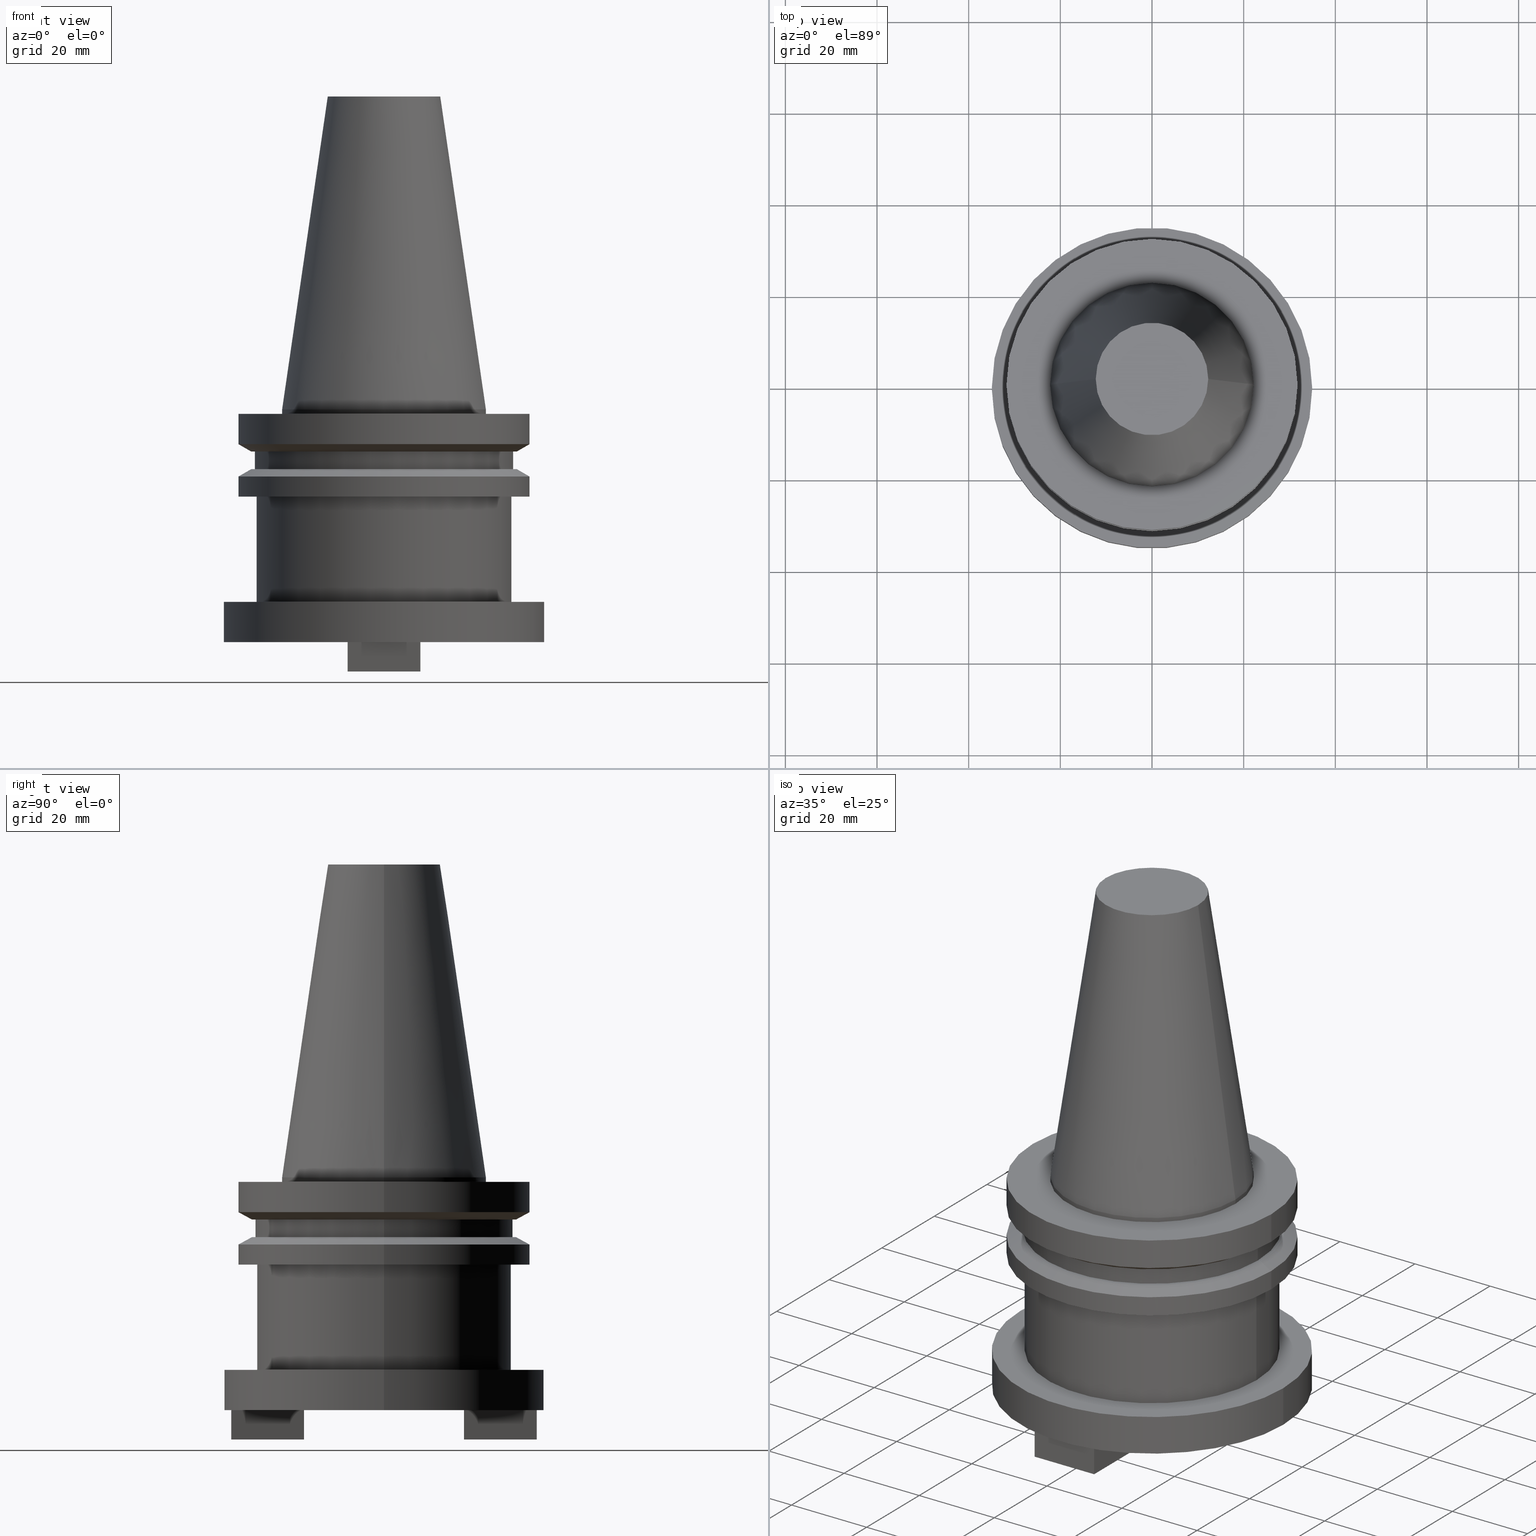
[diagram: canonical four-view strip — front | top / right | iso, engineering-drawing reading convention]
A machine part, canonical four-view strip (front | top / right | iso — engineering-drawing reading convention). The complete STEP part file that produces these views, byte-faithful:
ISO-10303-21;
HEADER;
FILE_DESCRIPTION (( 'STEP AP203' ),
    '1' );
FILE_NAME ('BCV40H-SMC1_000-2.stp',
    '2022-03-03T21:51:30',
    ( '' ),
    ( '' ),
    'SwSTEP 2.0',
    'SolidWorks 2021',
    '' );
FILE_SCHEMA (( 'CONFIG_CONTROL_DESIGN' ));
ENDSEC;

DATA;
#1 = VECTOR ( 'NONE', #109, 1000.000000000000000 ) ;
#2 = AXIS2_PLACEMENT_3D ( 'NONE', #211, #687, #877 ) ;
#3 = CARTESIAN_POINT ( 'NONE',  ( 7.934999999999999609, 17.46499999999999631, -50.79999999999999716 ) ) ;
#4 =( GEOMETRIC_REPRESENTATION_CONTEXT ( 3 ) GLOBAL_UNCERTAINTY_ASSIGNED_CONTEXT ( ( #888 ) ) GLOBAL_UNIT_ASSIGNED_CONTEXT ( ( #942, #669, #759 ) ) REPRESENTATION_CONTEXT ( 'NONE', 'WORKASPACE' ) );
#5 = APPROVAL ( #693, 'UNSPECIFIED' ) ;
#6 = LINE ( 'NONE', #1017, #649 ) ;
#7 = DIRECTION ( 'NONE',  ( -0.000000000000000000, -0.000000000000000000, 1.000000000000000000 ) ) ;
#8 = FACE_OUTER_BOUND ( 'NONE', #20, .T. ) ;
#9 = EDGE_LOOP ( 'NONE', ( #212, #615, #338, #452 ) ) ;
#10 = DIRECTION ( 'NONE',  ( -0.000000000000000000, -0.000000000000000000, 1.000000000000000000 ) ) ;
#11 = CARTESIAN_POINT ( 'NONE',  ( 0.000000000000000000, 0.000000000000000000, -9.205000000000005400 ) ) ;
#12 = VERTEX_POINT ( 'NONE', #476 ) ;
#13 = APPROVAL_ROLE ( '' ) ;
#14 = LINE ( 'NONE', #745, #793 ) ;
#15 = EDGE_LOOP ( 'NONE', ( #367, #943, #657, #641 ) ) ;
#16 = PERSON_AND_ORGANIZATION ( #226, #417 ) ;
#17 = CIRCLE ( 'NONE', #28, 12.27178102086201150 ) ;
#18 = AXIS2_PLACEMENT_3D ( 'NONE', #1008, #401, #726 ) ;
#19 = FACE_BOUND ( 'NONE', #77, .T. ) ;
#20 = EDGE_LOOP ( 'NONE', ( #537, #465, #184, #757 ) ) ;
#21 = DIRECTION ( 'NONE',  ( -0.000000000000000000, -0.000000000000000000, 1.000000000000000000 ) ) ;
#22 = CALENDAR_DATE ( 2022, 3, 3 ) ;
#23 = VERTEX_POINT ( 'NONE', #232 ) ;
#24 = DIRECTION ( 'NONE',  ( 0.000000000000000000, 0.000000000000000000, -1.000000000000000000 ) ) ;
#25 = FACE_OUTER_BOUND ( 'NONE', #390, .T. ) ;
#26 = ORIENTED_EDGE ( 'NONE', *, *, #500, .T. ) ;
#27 = AXIS2_PLACEMENT_3D ( 'NONE', #665, #21, #86 ) ;
#28 = AXIS2_PLACEMENT_3D ( 'NONE', #229, #79, #892 ) ;
#29 = CARTESIAN_POINT ( 'NONE',  ( -34.95000000000000284, 4.280140563019999423E-15, -42.00000000000000711 ) ) ;
#30 = AXIS2_PLACEMENT_3D ( 'NONE', #558, #743, #654 ) ;
#31 = LINE ( 'NONE', #681, #850 ) ;
#32 = ORIENTED_EDGE ( 'NONE', *, *, #653, .T. ) ;
#33 = CC_DESIGN_APPROVAL ( #5, ( #382 ) ) ;
#34 = PERSON_AND_ORGANIZATION ( #226, #417 ) ;
#35 = ORIENTED_EDGE ( 'NONE', *, *, #272, .T. ) ;
#36 = EDGE_CURVE ( 'NONE', #710, #884, #956, .T. ) ;
#37 = CARTESIAN_POINT ( 'NONE',  ( 0.000000000000000000, 0.000000000000000000, -1.000000000000000888 ) ) ;
#38 = CARTESIAN_POINT ( 'NONE',  ( 0.000000000000000000, 0.000000000000000000, 68.25000000000000000 ) ) ;
#39 = ORIENTED_EDGE ( 'NONE', *, *, #108, .T. ) ;
#40 = ORIENTED_EDGE ( 'NONE', *, *, #392, .F. ) ;
#41 = FACE_OUTER_BOUND ( 'NONE', #521, .T. ) ;
#42 = CARTESIAN_POINT ( 'NONE',  ( 0.000000000000000000, 0.000000000000000000, -7.605276606597335842 ) ) ;
#43 = CARTESIAN_POINT ( 'NONE',  ( -7.934999999999999609, -17.46499999999999986, -50.79999999999999716 ) ) ;
#44 = ORIENTED_EDGE ( 'NONE', *, *, #166, .T. ) ;
#45 = LINE ( 'NONE', #538, #569 ) ;
#46 = ADVANCED_FACE ( 'NONE', ( #578 ), #842, .T. ) ;
#47 = CARTESIAN_POINT ( 'NONE',  ( 34.95000000000000284, 0.000000000000000000, -50.79999999999999716 ) ) ;
#48 = AXIS2_PLACEMENT_3D ( 'NONE', #124, #686, #210 ) ;
#49 = AXIS2_PLACEMENT_3D ( 'NONE', #318, #217, #160 ) ;
#50 = DIRECTION ( 'NONE',  ( 0.000000000000000000, 1.000000000000000000, 0.000000000000000000 ) ) ;
#51 = ORIENTED_EDGE ( 'NONE', *, *, #919, .T. ) ;
#52 = AXIS2_PLACEMENT_3D ( 'NONE', #883, #56, #635 ) ;
#53 = EDGE_CURVE ( 'NONE', #535, #819, #479, .T. ) ;
#54 = CIRCLE ( 'NONE', #432, 31.74999999999999289 ) ;
#55 = CARTESIAN_POINT ( 'NONE',  ( -27.80000000000000071, 3.404518101629642167E-15, -42.00000000000000711 ) ) ;
#56 = DIRECTION ( 'NONE',  ( -0.000000000000000000, -0.000000000000000000, 1.000000000000000000 ) ) ;
#57 = EDGE_LOOP ( 'NONE', ( #373, #114 ) ) ;
#58 = EDGE_CURVE ( 'NONE', #76, #933, #97, .T. ) ;
#59 = CYLINDRICAL_SURFACE ( 'NONE', #225, 7.340000000000000746 ) ;
#60 = DIRECTION ( 'NONE',  ( 1.000000000000000000, 0.000000000000000000, 0.000000000000000000 ) ) ;
#61 = CARTESIAN_POINT ( 'NONE',  ( 0.000000000000000000, 0.000000000000000000, -42.00000000000000711 ) ) ;
#62 = ORIENTED_EDGE ( 'NONE', *, *, #63, .T. ) ;
#63 = EDGE_CURVE ( 'NONE', #263, #1012, #414, .T. ) ;
#64 = ORIENTED_EDGE ( 'NONE', *, *, #492, .F. ) ;
#65 = CARTESIAN_POINT ( 'NONE',  ( 22.22500000000000142, 2.721777511104992849E-15, 0.000000000000000000 ) ) ;
#66 = DIRECTION ( 'NONE',  ( -0.000000000000000000, -0.000000000000000000, 1.000000000000000000 ) ) ;
#67 = DIRECTION ( 'NONE',  ( -1.000000000000000000, 0.000000000000000000, 0.000000000000000000 ) ) ;
#68 = DIRECTION ( 'NONE',  ( 1.000000000000000000, 0.000000000000000000, 0.000000000000000000 ) ) ;
#69 = CONICAL_SURFACE ( 'NONE', #906, 28.97919780457007732, 1.047197551196598297 ) ;
#70 = CIRCLE ( 'NONE', #868, 7.340000000000000746 ) ;
#71 = ORIENTED_EDGE ( 'NONE', *, *, #1063, .F. ) ;
#72 = AXIS2_PLACEMENT_3D ( 'NONE', #477, #736, #88 ) ;
#73 = DIRECTION ( 'NONE',  ( -1.000000000000000000, 0.000000000000000000, 0.000000000000000000 ) ) ;
#74 = DIRECTION ( 'NONE',  ( 0.000000000000000000, 1.000000000000000000, 0.000000000000000000 ) ) ;
#75 = DIRECTION ( 'NONE',  ( 0.000000000000000000, 0.000000000000000000, -1.000000000000000000 ) ) ;
#76 = VERTEX_POINT ( 'NONE', #170 ) ;
#77 = EDGE_LOOP ( 'NONE', ( #1046, #592 ) ) ;
#78 = CYLINDRICAL_SURFACE ( 'NONE', #939, 31.75000000000000000 ) ;
#79 = DIRECTION ( 'NONE',  ( -0.000000000000000000, -0.000000000000000000, 1.000000000000000000 ) ) ;
#80 = DIRECTION ( 'NONE',  ( -0.000000000000000000, -0.000000000000000000, 1.000000000000000000 ) ) ;
#81 = ORIENTED_EDGE ( 'NONE', *, *, #533, .F. ) ;
#82 = ORIENTED_EDGE ( 'NONE', *, *, #746, .T. ) ;
#83 = ADVANCED_FACE ( 'NONE', ( #830 ), #574, .F. ) ;
#84 = DIRECTION ( 'NONE',  ( 1.000000000000000000, -0.000000000000000000, -0.000000000000000000 ) ) ;
#85 = LINE ( 'NONE', #412, #460 ) ;
#86 = DIRECTION ( 'NONE',  ( 1.000000000000000000, 0.000000000000000000, 0.000000000000000000 ) ) ;
#87 = CIRCLE ( 'NONE', #443, 22.22500000000000142 ) ;
#88 = DIRECTION ( 'NONE',  ( 1.000000000000000000, 0.000000000000000000, 0.000000000000000000 ) ) ;
#89 = AXIS2_PLACEMENT_3D ( 'NONE', #325, #418, #254 ) ;
#90 = EDGE_CURVE ( 'NONE', #464, #552, #262, .T. ) ;
#91 = CC_DESIGN_SECURITY_CLASSIFICATION ( #382, ( #344 ) ) ;
#92 = DIRECTION ( 'NONE',  ( -0.000000000000000000, -0.000000000000000000, 1.000000000000000000 ) ) ;
#93 = CC_DESIGN_DATE_AND_TIME_ASSIGNMENT ( #96, #1023, ( #775 ) ) ;
#94 = ORIENTED_EDGE ( 'NONE', *, *, #316, .T. ) ;
#95 = ADVANCED_FACE ( 'NONE', ( #347 ), #926, .T. ) ;
#96 = DATE_AND_TIME ( #22, #925 ) ;
#97 = LINE ( 'NONE', #423, #923 ) ;
#98 = ORIENTED_EDGE ( 'NONE', *, *, #626, .F. ) ;
#99 = DIRECTION ( 'NONE',  ( 1.000000000000000000, 0.000000000000000000, 0.000000000000000000 ) ) ;
#100 = EDGE_CURVE ( 'NONE', #161, #218, #742, .T. ) ;
#101 = EDGE_CURVE ( 'NONE', #526, #819, #256, .T. ) ;
#102 = PLANE ( 'NONE',  #718 ) ;
#103 = ORIENTED_EDGE ( 'NONE', *, *, #177, .F. ) ;
#104 = AXIS2_PLACEMENT_3D ( 'NONE', #450, #203, #785 ) ;
#105 = AXIS2_PLACEMENT_3D ( 'NONE', #940, #119, #767 ) ;
#106 = CARTESIAN_POINT ( 'NONE',  ( 34.95000000000000284, 0.000000000000000000, 0.000000000000000000 ) ) ;
#107 = CC_DESIGN_APPROVAL ( #503, ( #344 ) ) ;
#108 = EDGE_CURVE ( 'NONE', #348, #245, #14, .T. ) ;
#109 = DIRECTION ( 'NONE',  ( -1.000000000000000000, 0.000000000000000000, 0.000000000000000000 ) ) ;
#110 = EDGE_CURVE ( 'NONE', #333, #526, #1073, .T. ) ;
#111 = CARTESIAN_POINT ( 'NONE',  ( 22.22500000000000142, 0.000000000000000000, 68.25000000000000000 ) ) ;
#112 = FACE_BOUND ( 'NONE', #303, .T. ) ;
#113 = LINE ( 'NONE', #614, #834 ) ;
#114 = ORIENTED_EDGE ( 'NONE', *, *, #596, .F. ) ;
#115 = VECTOR ( 'NONE', #859, 1000.000000000000000 ) ;
#116 = VECTOR ( 'NONE', #141, 1000.000000000000000 ) ;
#117 = CARTESIAN_POINT ( 'NONE',  ( 0.000000000000000000, 0.000000000000000000, -14.65472339340266572 ) ) ;
#118 = AXIS2_PLACEMENT_3D ( 'NONE', #784, #954, #369 ) ;
#119 = DIRECTION ( 'NONE',  ( 1.000000000000000000, 0.000000000000000000, 0.000000000000000000 ) ) ;
#120 = ORIENTED_EDGE ( 'NONE', *, *, #1085, .F. ) ;
#121 = LOCAL_TIME ( 15, 51, 30.00000000000000000, #297 ) ;
#122 = ADVANCED_FACE ( 'NONE', ( #837 ), #69, .T. ) ;
#123 = ORIENTED_EDGE ( 'NONE', *, *, #583, .F. ) ;
#124 = CARTESIAN_POINT ( 'NONE',  ( 0.000000000000000000, 31.75000000000000000, -0.9999999999999943379 ) ) ;
#125 = CARTESIAN_POINT ( 'NONE',  ( 7.935000000000001386, -17.46499999999999986, -50.79999999999999716 ) ) ;
#126 = VERTEX_POINT ( 'NONE', #340 ) ;
#127 = VERTEX_POINT ( 'NONE', #1018 ) ;
#128 = DIRECTION ( 'NONE',  ( -1.000000000000000000, 0.000000000000000000, -0.000000000000000000 ) ) ;
#129 = ADVANCED_FACE ( 'NONE', ( #260 ), #102, .F. ) ;
#130 = ADVANCED_FACE ( 'NONE', ( #19, #1010 ), #345, .F. ) ;
#131 = CARTESIAN_POINT ( 'NONE',  ( 28.17999999999999972, 0.000000000000000000, 68.25000000000000000 ) ) ;
#132 = PLANE ( 'NONE',  #105 ) ;
#133 = EDGE_LOOP ( 'NONE', ( #646, #716, #324, #499 ) ) ;
#134 = EDGE_CURVE ( 'NONE', #162, #773, #932, .T. ) ;
#135 = DIRECTION ( 'NONE',  ( 0.000000000000000000, -1.000000000000000000, -0.000000000000000000 ) ) ;
#136 = CLOSED_SHELL ( 'NONE', ( #934, #95, #621, #776, #122, #875, #760, #146, #46, #169, #362, #221, #659, #927, #763, #1016, #1011, #821, #549, #963, #853, #982, #157, #266, #130, #755, #996, #83, #129, #329, #540, #616, #185, #486, #264, #783, #364, #587 ) ) ;
#137 = CIRCLE ( 'NONE', #52, 22.22500000000000142 ) ;
#138 = FACE_OUTER_BOUND ( 'NONE', #921, .T. ) ;
#139 = ORIENTED_EDGE ( 'NONE', *, *, #854, .T. ) ;
#140 = CARTESIAN_POINT ( 'NONE',  ( -7.934999999999999609, 33.33499999999999375, -50.79999999999999716 ) ) ;
#141 = DIRECTION ( 'NONE',  ( 1.000000000000000000, -0.000000000000000000, -0.000000000000000000 ) ) ;
#142 = LINE ( 'NONE', #148, #512 ) ;
#143 = ORIENTED_EDGE ( 'NONE', *, *, #952, .T. ) ;
#144 = VERTEX_POINT ( 'NONE', #849 ) ;
#145 = CARTESIAN_POINT ( 'NONE',  ( 31.75000000000000000, 3.888253587292846476E-15, -14.65472339340266572 ) ) ;
#146 = ADVANCED_FACE ( 'NONE', ( #267 ), #589, .T. ) ;
#147 = CARTESIAN_POINT ( 'NONE',  ( 7.935000000000001386, -17.46499999999999986, -57.20000000000000284 ) ) ;
#148 = CARTESIAN_POINT ( 'NONE',  ( -31.75000000000000000, 3.888253587292846476E-15, 68.25000000000000000 ) ) ;
#149 = EDGE_LOOP ( 'NONE', ( #977, #224, #629, #705 ) ) ;
#150 = DIRECTION ( 'NONE',  ( -1.000000000000000000, 0.000000000000000000, 0.000000000000000000 ) ) ;
#151 = CARTESIAN_POINT ( 'NONE',  ( 0.000000000000000000, 0.000000000000000000, -42.00000000000000711 ) ) ;
#152 = CARTESIAN_POINT ( 'NONE',  ( 7.934999999999999609, 33.33499999999999375, -50.79999999999999716 ) ) ;
#153 = ORIENTED_EDGE ( 'NONE', *, *, #653, .F. ) ;
#154 = CIRCLE ( 'NONE', #1028, 31.75000000000000000 ) ;
#155 = VECTOR ( 'NONE', #709, 1000.000000000000000 ) ;
#156 = ORIENTED_EDGE ( 'NONE', *, *, #661, .F. ) ;
#157 = ADVANCED_FACE ( 'NONE', ( #112, #690 ), #876, .F. ) ;
#158 = LINE ( 'NONE', #999, #1001 ) ;
#159 = DIRECTION ( 'NONE',  ( 0.000000000000000000, -0.000000000000000000, 1.000000000000000000 ) ) ;
#160 = DIRECTION ( 'NONE',  ( 1.000000000000000000, 0.000000000000000000, 0.000000000000000000 ) ) ;
#161 = VERTEX_POINT ( 'NONE', #47 ) ;
#162 = VERTEX_POINT ( 'NONE', #613 ) ;
#163 = DIRECTION ( 'NONE',  ( 0.000000000000000000, 0.000000000000000000, -1.000000000000000000 ) ) ;
#164 = EDGE_CURVE ( 'NONE', #1012, #1022, #607, .T. ) ;
#165 = CARTESIAN_POINT ( 'NONE',  ( 0.000000000000000000, 0.000000000000000000, -1.000000000000000888 ) ) ;
#166 = EDGE_CURVE ( 'NONE', #552, #1067, #351, .T. ) ;
#167 = CARTESIAN_POINT ( 'NONE',  ( 0.000000000000000000, 0.000000000000000000, 68.25000000000000000 ) ) ;
#168 = CARTESIAN_POINT ( 'NONE',  ( -7.934999999999999609, 33.33499999999999375, -50.79999999999999716 ) ) ;
#169 = ADVANCED_FACE ( 'NONE', ( #790 ), #1014, .T. ) ;
#170 = CARTESIAN_POINT ( 'NONE',  ( -7.934999999999999609, 17.46499999999999631, -57.20000000000000284 ) ) ;
#171 = ORIENTED_EDGE ( 'NONE', *, *, #746, .F. ) ;
#172 = AXIS2_PLACEMENT_3D ( 'NONE', #564, #66, #975 ) ;
#173 = CIRCLE ( 'NONE', #202, 34.95000000000000284 ) ;
#174 = APPROVAL_PERSON_ORGANIZATION ( #16, #354, #13 ) ;
#175 = DIRECTION ( 'NONE',  ( -0.000000000000000000, -0.000000000000000000, 1.000000000000000000 ) ) ;
#176 = EDGE_LOOP ( 'NONE', ( #706, #381 ) ) ;
#177 = EDGE_CURVE ( 'NONE', #307, #575, #154, .T. ) ;
#178 = LINE ( 'NONE', #847, #652 ) ;
#179 = CARTESIAN_POINT ( 'NONE',  ( 27.80000000000000071, 0.000000000000000000, -19.04999999999999716 ) ) ;
#180 = DIRECTION ( 'NONE',  ( 1.000000000000000000, 0.000000000000000000, 0.000000000000000000 ) ) ;
#181 = ORIENTED_EDGE ( 'NONE', *, *, #639, .F. ) ;
#182 = EDGE_CURVE ( 'NONE', #1012, #263, #525, .T. ) ;
#183 = CARTESIAN_POINT ( 'NONE',  ( -22.22500000000000142, 0.000000000000000000, 0.000000000000000000 ) ) ;
#184 = ORIENTED_EDGE ( 'NONE', *, *, #1085, .T. ) ;
#185 = ADVANCED_FACE ( 'NONE', ( #949 ), #438, .T. ) ;
#186 = AXIS2_PLACEMENT_3D ( 'NONE', #463, #623, #403 ) ;
#187 = CIRCLE ( 'NONE', #1076, 12.27178102086201150 ) ;
#188 = CARTESIAN_POINT ( 'NONE',  ( 31.74999999999999289, 0.000000000000000000, -19.04999999999999716 ) ) ;
#189 = CARTESIAN_POINT ( 'NONE',  ( 0.000000000000000000, 0.000000000000000000, -50.79999999999999716 ) ) ;
#190 = ORIENTED_EDGE ( 'NONE', *, *, #1059, .F. ) ;
#191 = CALENDAR_DATE ( 2022, 3, 3 ) ;
#192 = EDGE_CURVE ( 'NONE', #126, #735, #429, .T. ) ;
#193 = DIRECTION ( 'NONE',  ( 1.000000000000000000, 0.000000000000000000, 0.000000000000000000 ) ) ;
#194 = CARTESIAN_POINT ( 'NONE',  ( 22.22500000000000142, 2.721777511104992849E-15, 0.000000000000000000 ) ) ;
#195 = EDGE_LOOP ( 'NONE', ( #1041, #792, #35, #1032 ) ) ;
#196 = ORIENTED_EDGE ( 'NONE', *, *, #596, .T. ) ;
#197 = CARTESIAN_POINT ( 'NONE',  ( 0.000000000000000000, 0.000000000000000000, 0.000000000000000000 ) ) ;
#198 = CARTESIAN_POINT ( 'NONE',  ( -7.934999999999999609, -17.46499999999999986, -57.20000000000000284 ) ) ;
#199 = ORIENTED_EDGE ( 'NONE', *, *, #101, .F. ) ;
#200 = FACE_OUTER_BOUND ( 'NONE', #1045, .T. ) ;
#201 = VECTOR ( 'NONE', #7, 1000.000000000000000 ) ;
#202 = AXIS2_PLACEMENT_3D ( 'NONE', #189, #451, #283 ) ;
#203 = DIRECTION ( 'NONE',  ( -0.000000000000000000, -0.000000000000000000, 1.000000000000000000 ) ) ;
#204 = AXIS2_PLACEMENT_3D ( 'NONE', #707, #796, #1062 ) ;
#205 = EDGE_CURVE ( 'NONE', #524, #213, #679, .T. ) ;
#206 = CARTESIAN_POINT ( 'NONE',  ( 7.934999999999999609, 33.33499999999999375, -57.20000000000000284 ) ) ;
#207 = ORIENTED_EDGE ( 'NONE', *, *, #166, .F. ) ;
#208 = EDGE_CURVE ( 'NONE', #806, #953, #680, .T. ) ;
#209 = PRODUCT ( 'BCV40H-SMC1_000-2', 'BCV40H-SMC1_000-2', '', ( #673 ) ) ;
#210 = DIRECTION ( 'NONE',  ( -1.000000000000000000, 0.000000000000000000, -0.000000000000000000 ) ) ;
#211 = CARTESIAN_POINT ( 'NONE',  ( 0.000000000000000000, 0.000000000000000000, -57.20000000000000284 ) ) ;
#212 = ORIENTED_EDGE ( 'NONE', *, *, #1036, .T. ) ;
#213 = VERTEX_POINT ( 'NONE', #529 ) ;
#214 = EDGE_CURVE ( 'NONE', #884, #710, #936, .T. ) ;
#215 = DIRECTION ( 'NONE',  ( -0.000000000000000000, -0.000000000000000000, 1.000000000000000000 ) ) ;
#216 = CARTESIAN_POINT ( 'NONE',  ( 0.000000000000000000, 0.000000000000000000, 68.25000000000000000 ) ) ;
#217 = DIRECTION ( 'NONE',  ( -0.000000000000000000, -0.000000000000000000, 1.000000000000000000 ) ) ;
#218 = VERTEX_POINT ( 'NONE', #532 ) ;
#219 = PLANE ( 'NONE',  #700 ) ;
#220 = CIRCLE ( 'NONE', #356, 31.75000000000000000 ) ;
#221 = ADVANCED_FACE ( 'NONE', ( #371 ), #998, .T. ) ;
#222 = AXIS2_PLACEMENT_3D ( 'NONE', #898, #723, #306 ) ;
#223 = CARTESIAN_POINT ( 'NONE',  ( 0.000000000000000000, 0.000000000000000000, -9.204999999999991189 ) ) ;
#224 = ORIENTED_EDGE ( 'NONE', *, *, #583, .T. ) ;
#225 = AXIS2_PLACEMENT_3D ( 'NONE', #387, #215, #528 ) ;
#226 = PERSON ( 'UNSPECIFIED', 'UNSPECIFIED', 'UNSPECIFIED', ('UNSPECIFIED'), ('UNSPECIFIED'), ('UNSPECIFIED') ) ;
#227 = ORIENTED_EDGE ( 'NONE', *, *, #952, .F. ) ;
#228 = CARTESIAN_POINT ( 'NONE',  ( 7.340000000000000746, 0.000000000000000000, -42.00000000000000711 ) ) ;
#229 = CARTESIAN_POINT ( 'NONE',  ( 0.000000000000000000, 0.000000000000000000, 68.25000000000000000 ) ) ;
#230 = EDGE_CURVE ( 'NONE', #333, #535, #292, .T. ) ;
#231 = LINE ( 'NONE', #468, #377 ) ;
#232 = CARTESIAN_POINT ( 'NONE',  ( -7.934999999999999609, -17.46499999999999986, -50.79999999999999716 ) ) ;
#233 = ORIENTED_EDGE ( 'NONE', *, *, #408, .F. ) ;
#234 = LINE ( 'NONE', #3, #961 ) ;
#235 = CARTESIAN_POINT ( 'NONE',  ( 0.000000000000000000, 34.95000000000000284, -50.79999999999999716 ) ) ;
#236 = FACE_OUTER_BOUND ( 'NONE', #195, .T. ) ;
#237 = VERTEX_POINT ( 'NONE', #188 ) ;
#238 = ORIENTED_EDGE ( 'NONE', *, *, #370, .F. ) ;
#239 = LINE ( 'NONE', #658, #702 ) ;
#240 = DIRECTION ( 'NONE',  ( 0.000000000000000000, -0.000000000000000000, 1.000000000000000000 ) ) ;
#241 = CARTESIAN_POINT ( 'NONE',  ( 0.000000000000000000, 0.000000000000000000, 68.25000000000000000 ) ) ;
#242 = ORIENTED_EDGE ( 'NONE', *, *, #63, .F. ) ;
#243 = VECTOR ( 'NONE', #445, 1000.000000000000000 ) ;
#244 = AXIS2_PLACEMENT_3D ( 'NONE', #487, #983, #407 ) ;
#245 = VERTEX_POINT ( 'NONE', #29 ) ;
#246 = CIRCLE ( 'NONE', #89, 27.80000000000000071 ) ;
#247 = DIRECTION ( 'NONE',  ( -1.000000000000000000, 0.000000000000000000, 0.000000000000000000 ) ) ;
#248 = DIRECTION ( 'NONE',  ( 1.000000000000000000, 0.000000000000000000, 0.000000000000000000 ) ) ;
#249 = ORIENTED_EDGE ( 'NONE', *, *, #192, .T. ) ;
#250 = CYLINDRICAL_SURFACE ( 'NONE', #835, 7.340000000000000746 ) ;
#251 = EDGE_CURVE ( 'NONE', #1067, #482, #300, .T. ) ;
#252 = DIRECTION ( 'NONE',  ( 1.000000000000000000, 0.000000000000000000, 0.000000000000000000 ) ) ;
#253 = ORIENTED_EDGE ( 'NONE', *, *, #752, .F. ) ;
#254 = DIRECTION ( 'NONE',  ( 1.000000000000000000, 0.000000000000000000, 0.000000000000000000 ) ) ;
#255 = EDGE_CURVE ( 'NONE', #526, #333, #497, .T. ) ;
#256 = LINE ( 'NONE', #656, #865 ) ;
#257 = VECTOR ( 'NONE', #591, 1000.000000000000000 ) ;
#258 = DATE_AND_TIME ( #1034, #582 ) ;
#259 = AXIS2_PLACEMENT_3D ( 'NONE', #304, #970, #1047 ) ;
#260 = FACE_OUTER_BOUND ( 'NONE', #428, .T. ) ;
#261 = EDGE_CURVE ( 'NONE', #694, #442, #271, .T. ) ;
#262 = LINE ( 'NONE', #502, #577 ) ;
#263 = VERTEX_POINT ( 'NONE', #1038 ) ;
#264 = ADVANCED_FACE ( 'NONE', ( #903 ), #809, .F. ) ;
#265 = APPROVAL_STATUS ( 'not_yet_approved' ) ;
#266 = ADVANCED_FACE ( 'NONE', ( #305 ), #539, .T. ) ;
#267 = FACE_OUTER_BOUND ( 'NONE', #133, .T. ) ;
#268 = DIRECTION ( 'NONE',  ( 0.000000000000000000, -1.000000000000000000, 0.000000000000000000 ) ) ;
#269 = ORIENTED_EDGE ( 'NONE', *, *, #1049, .T. ) ;
#270 = CALENDAR_DATE ( 2022, 3, 3 ) ;
#271 = CIRCLE ( 'NONE', #885, 22.22500000000000142 ) ;
#272 = EDGE_CURVE ( 'NONE', #575, #307, #220, .T. ) ;
#273 = AXIS2_PLACEMENT_3D ( 'NONE', #896, #606, #285 ) ;
#274 = DIRECTION ( 'NONE',  ( -0.000000000000000000, -0.000000000000000000, 1.000000000000000000 ) ) ;
#275 = LINE ( 'NONE', #43, #257 ) ;
#276 = ORIENTED_EDGE ( 'NONE', *, *, #205, .F. ) ;
#277 = CC_DESIGN_PERSON_AND_ORGANIZATION_ASSIGNMENT ( #747, #517, ( #344 ) ) ;
#278 = DATE_TIME_ROLE ( 'classification_date' ) ;
#279 = CC_DESIGN_PERSON_AND_ORGANIZATION_ASSIGNMENT ( #931, #507, ( #775 ) ) ;
#280 = EDGE_CURVE ( 'NONE', #773, #991, #631, .T. ) ;
#281 = DIRECTION ( 'NONE',  ( -0.000000000000000000, -0.000000000000000000, 1.000000000000000000 ) ) ;
#282 = EDGE_CURVE ( 'NONE', #857, #127, #70, .T. ) ;
#283 = DIRECTION ( 'NONE',  ( 1.000000000000000000, 0.000000000000000000, 0.000000000000000000 ) ) ;
#284 = ORIENTED_EDGE ( 'NONE', *, *, #1068, .F. ) ;
#285 = DIRECTION ( 'NONE',  ( 1.000000000000000000, 0.000000000000000000, 0.000000000000000000 ) ) ;
#286 = DIRECTION ( 'NONE',  ( -0.000000000000000000, -0.000000000000000000, 1.000000000000000000 ) ) ;
#287 = FACE_OUTER_BOUND ( 'NONE', #313, .T. ) ;
#288 = ORIENTED_EDGE ( 'NONE', *, *, #1059, .T. ) ;
#289 = LINE ( 'NONE', #546, #330 ) ;
#290 = AXIS2_PLACEMENT_3D ( 'NONE', #167, #281, #365 ) ;
#291 = VECTOR ( 'NONE', #627, 1000.000000000000000 ) ;
#292 = LINE ( 'NONE', #1055, #458 ) ;
#293 = AXIS2_PLACEMENT_3D ( 'NONE', #836, #741, #1037 ) ;
#294 = LINE ( 'NONE', #352, #937 ) ;
#295 = EDGE_LOOP ( 'NONE', ( #457, #82, #595, #895 ) ) ;
#296 = LOCAL_TIME ( 15, 51, 30.00000000000000000, #339 ) ;
#297 = COORDINATED_UNIVERSAL_TIME_OFFSET ( 6, 0, .BEHIND. ) ;
#298 = ORIENTED_EDGE ( 'NONE', *, *, #960, .T. ) ;
#299 = CARTESIAN_POINT ( 'NONE',  ( 0.000000000000000000, 0.000000000000000000, 68.25000000000000000 ) ) ;
#300 = LINE ( 'NONE', #514, #1 ) ;
#301 = DIRECTION ( 'NONE',  ( 0.000000000000000000, -1.000000000000000000, 0.000000000000000000 ) ) ;
#302 = ORIENTED_EDGE ( 'NONE', *, *, #919, .F. ) ;
#303 = EDGE_LOOP ( 'NONE', ( #391, #471 ) ) ;
#304 = CARTESIAN_POINT ( 'NONE',  ( 0.000000000000000000, 0.000000000000000000, -9.205000000000005400 ) ) ;
#305 = FACE_OUTER_BOUND ( 'NONE', #986, .T. ) ;
#306 = DIRECTION ( 'NONE',  ( -1.000000000000000000, 0.000000000000000000, -0.000000000000000000 ) ) ;
#307 = VERTEX_POINT ( 'NONE', #394 ) ;
#308 = CARTESIAN_POINT ( 'NONE',  ( -7.934999999999999609, -17.46499999999999986, -57.20000000000000284 ) ) ;
#309 = CC_DESIGN_PERSON_AND_ORGANIZATION_ASSIGNMENT ( #769, #685, ( #382 ) ) ;
#310 = CARTESIAN_POINT ( 'NONE',  ( -7.934999999999999609, 33.33499999999999375, -57.20000000000000284 ) ) ;
#311 = AXIS2_PLACEMENT_3D ( 'NONE', #662, #433, #920 ) ;
#312 = DIRECTION ( 'NONE',  ( -0.000000000000000000, -0.000000000000000000, 1.000000000000000000 ) ) ;
#313 = EDGE_LOOP ( 'NONE', ( #489, #734, #712, #688 ) ) ;
#314 = AXIS2_PLACEMENT_3D ( 'NONE', #585, #349, #99 ) ;
#315 = DIRECTION ( 'NONE',  ( -0.000000000000000000, -0.000000000000000000, 1.000000000000000000 ) ) ;
#316 = EDGE_CURVE ( 'NONE', #76, #990, #643, .T. ) ;
#317 = CARTESIAN_POINT ( 'NONE',  ( 0.000000000000000000, 0.000000000000000000, -14.65472339340266572 ) ) ;
#318 = CARTESIAN_POINT ( 'NONE',  ( 0.000000000000000000, 0.000000000000000000, 0.000000000000000000 ) ) ;
#319 = ORIENTED_EDGE ( 'NONE', *, *, #500, .F. ) ;
#320 = LINE ( 'NONE', #145, #758 ) ;
#321 = DIRECTION ( 'NONE',  ( -0.000000000000000000, -0.000000000000000000, 1.000000000000000000 ) ) ;
#322 = EDGE_CURVE ( 'NONE', #127, #857, #396, .T. ) ;
#323 = CYLINDRICAL_SURFACE ( 'NONE', #49, 34.95000000000000284 ) ;
#324 = ORIENTED_EDGE ( 'NONE', *, *, #272, .F. ) ;
#325 = CARTESIAN_POINT ( 'NONE',  ( 0.000000000000000000, 0.000000000000000000, -19.04999999999999716 ) ) ;
#326 = CARTESIAN_POINT ( 'NONE',  ( 0.000000000000000000, 0.000000000000000000, -9.204999999999991189 ) ) ;
#327 = EDGE_LOOP ( 'NONE', ( #947, #276, #156, #139 ) ) ;
#328 = CONICAL_SURFACE ( 'NONE', #739, 31.75000000000000000, 1.047197551196597853 ) ;
#329 = ADVANCED_FACE ( 'NONE', ( #461 ), #219, .F. ) ;
#330 = VECTOR ( 'NONE', #802, 1000.000000000000000 ) ;
#331 = DIRECTION ( 'NONE',  ( 0.8660254037844387076, 1.060575238724906915E-16, -0.4999999999999998890 ) ) ;
#332 = CARTESIAN_POINT ( 'NONE',  ( 0.000000000000000000, 0.000000000000000000, -42.00000000000000711 ) ) ;
#333 = VERTEX_POINT ( 'NONE', #55 ) ;
#334 = CARTESIAN_POINT ( 'NONE',  ( 0.000000000000000000, 0.000000000000000000, -14.65472339340266572 ) ) ;
#335 = EDGE_LOOP ( 'NONE', ( #269, #39, #227, #780 ) ) ;
#336 = PLANE ( 'NONE',  #293 ) ;
#337 = DIRECTION ( 'NONE',  ( 1.000000000000000000, 0.000000000000000000, 0.000000000000000000 ) ) ;
#338 = ORIENTED_EDGE ( 'NONE', *, *, #1042, .F. ) ;
#339 = COORDINATED_UNIVERSAL_TIME_OFFSET ( 6, 0, .BEHIND. ) ;
#340 = CARTESIAN_POINT ( 'NONE',  ( 28.97919780457008088, 3.718590885307660666E-15, -13.05499999999999794 ) ) ;
#341 = AXIS2_PLACEMENT_3D ( 'NONE', #602, #455, #955 ) ;
#342 = APPROVAL_STATUS ( 'not_yet_approved' ) ;
#343 = VECTOR ( 'NONE', #84, 1000.000000000000000 ) ;
#344 = PRODUCT_DEFINITION_FORMATION_WITH_SPECIFIED_SOURCE ( 'ANY', '', #209, .NOT_KNOWN. ) ;
#345 = PLANE ( 'NONE',  #565 ) ;
#346 = ORIENTED_EDGE ( 'NONE', *, *, #230, .F. ) ;
#347 = FACE_OUTER_BOUND ( 'NONE', #335, .T. ) ;
#348 = VERTEX_POINT ( 'NONE', #993 ) ;
#349 = DIRECTION ( 'NONE',  ( 0.000000000000000000, 0.000000000000000000, 1.000000000000000000 ) ) ;
#350 = ORIENTED_EDGE ( 'NONE', *, *, #435, .T. ) ;
#351 = LINE ( 'NONE', #378, #115 ) ;
#352 = CARTESIAN_POINT ( 'NONE',  ( 31.75000000000000000, 0.000000000000000000, 68.25000000000000000 ) ) ;
#353 = VERTEX_POINT ( 'NONE', #1088 ) ;
#354 = APPROVAL ( #342, 'UNSPECIFIED' ) ;
#355 = DATE_AND_TIME ( #191, #296 ) ;
#356 = AXIS2_PLACEMENT_3D ( 'NONE', #317, #321, #897 ) ;
#357 = AXIS2_PLACEMENT_3D ( 'NONE', #223, #551, #1083 ) ;
#358 = CC_DESIGN_APPROVAL ( #354, ( #775 ) ) ;
#359 = CARTESIAN_POINT ( 'NONE',  ( 0.000000000000000000, 0.000000000000000000, 0.000000000000000000 ) ) ;
#360 = FACE_OUTER_BOUND ( 'NONE', #327, .T. ) ;
#361 = ORIENTED_EDGE ( 'NONE', *, *, #182, .T. ) ;
#362 = ADVANCED_FACE ( 'NONE', ( #1078, #638, #634, #478 ), #910, .F. ) ;
#363 = DIRECTION ( 'NONE',  ( -0.000000000000000000, -0.000000000000000000, 1.000000000000000000 ) ) ;
#364 = ADVANCED_FACE ( 'NONE', ( #817 ), #727, .F. ) ;
#365 = DIRECTION ( 'NONE',  ( 1.000000000000000000, 0.000000000000000000, 0.000000000000000000 ) ) ;
#366 = DIRECTION ( 'NONE',  ( 1.000000000000000000, 0.000000000000000000, 0.000000000000000000 ) ) ;
#367 = ORIENTED_EDGE ( 'NONE', *, *, #960, .F. ) ;
#368 = ORIENTED_EDGE ( 'NONE', *, *, #134, .F. ) ;
#369 = DIRECTION ( 'NONE',  ( 1.000000000000000000, 0.000000000000000000, 0.000000000000000000 ) ) ;
#370 = EDGE_CURVE ( 'NONE', #735, #126, #794, .T. ) ;
#371 = FACE_OUTER_BOUND ( 'NONE', #962, .T. ) ;
#372 = LINE ( 'NONE', #603, #666 ) ;
#373 = ORIENTED_EDGE ( 'NONE', *, *, #1049, .F. ) ;
#374 = AXIS2_PLACEMENT_3D ( 'NONE', #197, #938, #1048 ) ;
#375 = LINE ( 'NONE', #459, #548 ) ;
#376 = AXIS2_PLACEMENT_3D ( 'NONE', #42, #597, #855 ) ;
#377 = VECTOR ( 'NONE', #1065, 1000.000000000000000 ) ;
#378 = CARTESIAN_POINT ( 'NONE',  ( 7.935000000000001386, -17.46499999999999986, -50.79999999999999716 ) ) ;
#379 = AXIS2_PLACEMENT_3D ( 'NONE', #1003, #844, #128 ) ;
#380 = DIRECTION ( 'NONE',  ( 0.000000000000000000, -0.000000000000000000, 1.000000000000000000 ) ) ;
#381 = ORIENTED_EDGE ( 'NONE', *, *, #675, .T. ) ;
#382 = SECURITY_CLASSIFICATION ( '', '', #437 ) ;
#383 = DIRECTION ( 'NONE',  ( -0.000000000000000000, -0.000000000000000000, 1.000000000000000000 ) ) ;
#384 = DIRECTION ( 'NONE',  ( 1.000000000000000000, 0.000000000000000000, 0.000000000000000000 ) ) ;
#385 = DIRECTION ( 'NONE',  ( 1.000000000000000000, 0.000000000000000000, 0.000000000000000000 ) ) ;
#386 = EDGE_LOOP ( 'NONE', ( #874, #1058, #71, #199 ) ) ;
#387 = CARTESIAN_POINT ( 'NONE',  ( 0.000000000000000000, 0.000000000000000000, 0.000000000000000000 ) ) ;
#388 = LINE ( 'NONE', #554, #1015 ) ;
#389 = FACE_OUTER_BOUND ( 'NONE', #295, .T. ) ;
#390 = EDGE_LOOP ( 'NONE', ( #490, #319, #900, #506 ) ) ;
#391 = ORIENTED_EDGE ( 'NONE', *, *, #261, .F. ) ;
#392 = EDGE_CURVE ( 'NONE', #531, #905, #511, .T. ) ;
#393 = PLANE ( 'NONE',  #980 ) ;
#394 = CARTESIAN_POINT ( 'NONE',  ( -31.75000000000000000, 3.888253587292846476E-15, -14.65472339340266572 ) ) ;
#395 = VECTOR ( 'NONE', #508, 999.9999999999998863 ) ;
#396 = CIRCLE ( 'NONE', #1074, 7.340000000000000746 ) ;
#397 = FACE_OUTER_BOUND ( 'NONE', #717, .T. ) ;
#398 = ORIENTED_EDGE ( 'NONE', *, *, #639, .T. ) ;
#399 = CIRCLE ( 'NONE', #259, 28.97919780457007732 ) ;
#400 = ORIENTED_EDGE ( 'NONE', *, *, #1056, .F. ) ;
#401 = DIRECTION ( 'NONE',  ( -0.000000000000000000, -0.000000000000000000, 1.000000000000000000 ) ) ;
#402 = DIRECTION ( 'NONE',  ( 0.000000000000000000, -1.000000000000000000, -0.000000000000000000 ) ) ;
#403 = DIRECTION ( 'NONE',  ( 1.000000000000000000, 0.000000000000000000, 0.000000000000000000 ) ) ;
#404 = ORIENTED_EDGE ( 'NONE', *, *, #918, .F. ) ;
#405 = DESIGN_CONTEXT ( 'detailed design', #833, 'design' ) ;
#406 = CARTESIAN_POINT ( 'NONE',  ( -7.934999999999999609, 33.33499999999999375, -57.20000000000000284 ) ) ;
#407 = DIRECTION ( 'NONE',  ( 1.000000000000000000, 0.000000000000000000, 0.000000000000000000 ) ) ;
#408 = EDGE_CURVE ( 'NONE', #162, #878, #17, .T. ) ;
#409 = DIRECTION ( 'NONE',  ( -0.000000000000000000, -0.000000000000000000, 1.000000000000000000 ) ) ;
#410 = ORIENTED_EDGE ( 'NONE', *, *, #886, .F. ) ;
#411 = FACE_OUTER_BOUND ( 'NONE', #642, .T. ) ;
#412 = CARTESIAN_POINT ( 'NONE',  ( -7.340000000000000746, 8.988907505741573837E-16, 0.000000000000000000 ) ) ;
#413 = CARTESIAN_POINT ( 'NONE',  ( -31.75000000000000000, 0.000000000000000000, -14.65472339340266572 ) ) ;
#414 = CIRCLE ( 'NONE', #311, 28.17999999999999972 ) ;
#415 = CARTESIAN_POINT ( 'NONE',  ( 0.000000000000000000, 0.000000000000000000, -42.00000000000000711 ) ) ;
#416 = VECTOR ( 'NONE', #496, 1000.000000000000000 ) ;
#417 = ORGANIZATION ( 'UNSPECIFIED', 'UNSPECIFIED', '' ) ;
#418 = DIRECTION ( 'NONE',  ( -0.000000000000000000, -0.000000000000000000, 1.000000000000000000 ) ) ;
#419 = VERTEX_POINT ( 'NONE', #622 ) ;
#420 = DIRECTION ( 'NONE',  ( 0.000000000000000000, -0.000000000000000000, 1.000000000000000000 ) ) ;
#421 = EDGE_LOOP ( 'NONE', ( #44, #1026, #510, #516 ) ) ;
#422 = APPROVAL_ROLE ( '' ) ;
#423 = CARTESIAN_POINT ( 'NONE',  ( -7.934999999999999609, 17.46499999999999631, -57.20000000000000284 ) ) ;
#424 = ORIENTED_EDGE ( 'NONE', *, *, #53, .F. ) ;
#425 = APPLICATION_PROTOCOL_DEFINITION ( 'international standard', 'config_control_design', 1994, #748 ) ;
#426 = CC_DESIGN_PERSON_AND_ORGANIZATION_ASSIGNMENT ( #935, #852, ( #344 ) ) ;
#427 = DIRECTION ( 'NONE',  ( 0.000000000000000000, 0.000000000000000000, -1.000000000000000000 ) ) ;
#428 = EDGE_LOOP ( 'NONE', ( #298, #98, #562, #1066 ) ) ;
#429 = CIRCLE ( 'NONE', #104, 28.97919780457008088 ) ;
#430 = VECTOR ( 'NONE', #1031, 999.9999999999998863 ) ;
#431 = DIRECTION ( 'NONE',  ( -0.000000000000000000, -0.000000000000000000, 1.000000000000000000 ) ) ;
#432 = AXIS2_PLACEMENT_3D ( 'NONE', #964, #553, #620 ) ;
#433 = DIRECTION ( 'NONE',  ( -0.000000000000000000, -0.000000000000000000, 1.000000000000000000 ) ) ;
#434 = DIRECTION ( 'NONE',  ( -1.000000000000000000, 0.000000000000000000, 0.000000000000000000 ) ) ;
#435 = EDGE_CURVE ( 'NONE', #990, #1061, #708, .T. ) ;
#436 = DIRECTION ( 'NONE',  ( -0.000000000000000000, -0.000000000000000000, 1.000000000000000000 ) ) ;
#437 = SECURITY_CLASSIFICATION_LEVEL ( 'unclassified' ) ;
#438 = PLANE ( 'NONE',  #341 ) ;
#439 = FACE_OUTER_BOUND ( 'NONE', #768, .T. ) ;
#440 = ORIENTED_EDGE ( 'NONE', *, *, #752, .T. ) ;
#441 = AXIS2_PLACEMENT_3D ( 'NONE', #415, #420, #761 ) ;
#442 = VERTEX_POINT ( 'NONE', #467 ) ;
#443 = AXIS2_PLACEMENT_3D ( 'NONE', #165, #493, #829 ) ;
#444 = AXIS2_PLACEMENT_3D ( 'NONE', #981, #383, #880 ) ;
#445 = DIRECTION ( 'NONE',  ( -0.000000000000000000, -0.000000000000000000, 1.000000000000000000 ) ) ;
#446 = CARTESIAN_POINT ( 'NONE',  ( -31.74999999999999289, 3.888253587292845687E-15, -19.04999999999999716 ) ) ;
#447 = EDGE_LOOP ( 'NONE', ( #469, #242 ) ) ;
#448 = EDGE_CURVE ( 'NONE', #263, #660, #388, .T. ) ;
#449 = CARTESIAN_POINT ( 'NONE',  ( 7.934999999999999609, 33.33499999999999375, -57.20000000000000284 ) ) ;
#450 = CARTESIAN_POINT ( 'NONE',  ( 0.000000000000000000, 0.000000000000000000, -13.05499999999999794 ) ) ;
#451 = DIRECTION ( 'NONE',  ( -0.000000000000000000, -0.000000000000000000, 1.000000000000000000 ) ) ;
#452 = ORIENTED_EDGE ( 'NONE', *, *, #205, .T. ) ;
#453 = ORIENTED_EDGE ( 'NONE', *, *, #907, .T. ) ;
#454 = CARTESIAN_POINT ( 'NONE',  ( 7.934999999999999609, 33.33499999999999375, -50.79999999999999716 ) ) ;
#455 = DIRECTION ( 'NONE',  ( -0.000000000000000000, 0.000000000000000000, -1.000000000000000000 ) ) ;
#456 = LINE ( 'NONE', #194, #430 ) ;
#457 = ORIENTED_EDGE ( 'NONE', *, *, #36, .T. ) ;
#458 = VECTOR ( 'NONE', #696, 1000.000000000000000 ) ;
#459 = CARTESIAN_POINT ( 'NONE',  ( 31.75000000000000000, 0.000000000000000000, 68.25000000000000000 ) ) ;
#460 = VECTOR ( 'NONE', #738, 1000.000000000000000 ) ;
#461 = FACE_OUTER_BOUND ( 'NONE', #1084, .T. ) ;
#462 = EDGE_CURVE ( 'NONE', #442, #694, #87, .T. ) ;
#463 = CARTESIAN_POINT ( 'NONE',  ( 0.000000000000000000, 31.74999999999999289, -19.04999999999999716 ) ) ;
#464 = VERTEX_POINT ( 'NONE', #571 ) ;
#465 = ORIENTED_EDGE ( 'NONE', *, *, #824, .F. ) ;
#466 = CYLINDRICAL_SURFACE ( 'NONE', #273, 27.80000000000000071 ) ;
#467 = CARTESIAN_POINT ( 'NONE',  ( -22.22500000000000142, 2.721777511104992849E-15, -1.000000000000000888 ) ) ;
#468 = CARTESIAN_POINT ( 'NONE',  ( -22.22500000000000142, 2.721777511104992849E-15, 68.25000000000000000 ) ) ;
#469 = ORIENTED_EDGE ( 'NONE', *, *, #182, .F. ) ;
#470 = EDGE_CURVE ( 'NONE', #144, #127, #85, .T. ) ;
#471 = ORIENTED_EDGE ( 'NONE', *, *, #462, .F. ) ;
#472 = EDGE_CURVE ( 'NONE', #1022, #660, #720, .T. ) ;
#473 = DIRECTION ( 'NONE',  ( -0.000000000000000000, 1.000000000000000000, -0.000000000000000000 ) ) ;
#474 = DIRECTION ( 'NONE',  ( -0.000000000000000000, -0.000000000000000000, 1.000000000000000000 ) ) ;
#475 = CARTESIAN_POINT ( 'NONE',  ( -28.17999999999999972, 3.451054679997241634E-15, -9.204999999999991189 ) ) ;
#476 = CARTESIAN_POINT ( 'NONE',  ( 7.935000000000001386, -33.33499999999999375, -57.20000000000000284 ) ) ;
#477 = CARTESIAN_POINT ( 'NONE',  ( 0.000000000000000000, 0.000000000000000000, 68.25000000000000000 ) ) ;
#478 = FACE_BOUND ( 'NONE', #967, .T. ) ;
#479 = CIRCLE ( 'NONE', #27, 27.80000000000000071 ) ;
#480 = VECTOR ( 'NONE', #301, 1000.000000000000000 ) ;
#481 = FACE_OUTER_BOUND ( 'NONE', #951, .T. ) ;
#482 = VERTEX_POINT ( 'NONE', #915 ) ;
#483 = CIRCLE ( 'NONE', #18, 34.95000000000000284 ) ;
#484 = CARTESIAN_POINT ( 'NONE',  ( 7.934999999999999609, 33.33499999999999375, -57.20000000000000284 ) ) ;
#485 = EDGE_CURVE ( 'NONE', #464, #12, #113, .T. ) ;
#486 = ADVANCED_FACE ( 'NONE', ( #25 ), #132, .F. ) ;
#487 = CARTESIAN_POINT ( 'NONE',  ( 0.000000000000000000, 0.000000000000000000, -9.205000000000005400 ) ) ;
#488 = DIRECTION ( 'NONE',  ( -0.000000000000000000, -0.000000000000000000, 1.000000000000000000 ) ) ;
#489 = ORIENTED_EDGE ( 'NONE', *, *, #1060, .T. ) ;
#490 = ORIENTED_EDGE ( 'NONE', *, *, #492, .T. ) ;
#491 = DIRECTION ( 'NONE',  ( -0.000000000000000000, -0.000000000000000000, 1.000000000000000000 ) ) ;
#492 = EDGE_CURVE ( 'NONE', #482, #23, #275, .T. ) ;
#493 = DIRECTION ( 'NONE',  ( -0.000000000000000000, -0.000000000000000000, 1.000000000000000000 ) ) ;
#494 = CARTESIAN_POINT ( 'NONE',  ( 0.000000000000000000, 0.000000000000000000, 68.25000000000000000 ) ) ;
#495 = FACE_BOUND ( 'NONE', #176, .T. ) ;
#496 = DIRECTION ( 'NONE',  ( -0.8660254037844387076, 0.000000000000000000, -0.4999999999999998890 ) ) ;
#497 = CIRCLE ( 'NONE', #590, 27.80000000000000071 ) ;
#498 = DIRECTION ( 'NONE',  ( -1.000000000000000000, 0.000000000000000000, 0.000000000000000000 ) ) ;
#499 = ORIENTED_EDGE ( 'NONE', *, *, #907, .F. ) ;
#500 = EDGE_CURVE ( 'NONE', #862, #23, #598, .T. ) ;
#501 = APPLICATION_PROTOCOL_DEFINITION ( 'international standard', 'config_control_design', 1994, #833 ) ;
#502 = CARTESIAN_POINT ( 'NONE',  ( 7.935000000000001386, -17.46499999999999986, -57.20000000000000284 ) ) ;
#503 = APPROVAL ( #265, 'UNSPECIFIED' ) ;
#504 = FACE_OUTER_BOUND ( 'NONE', #725, .T. ) ;
#505 = DIRECTION ( 'NONE',  ( 1.000000000000000000, 0.000000000000000000, 0.000000000000000000 ) ) ;
#506 = ORIENTED_EDGE ( 'NONE', *, *, #948, .T. ) ;
#507 = PERSON_AND_ORGANIZATION_ROLE ( 'creator' ) ;
#508 = DIRECTION ( 'NONE',  ( -0.1443082272672999711, 0.000000000000000000, -0.9895327864921755756 ) ) ;
#509 = AXIS2_PLACEMENT_3D ( 'NONE', #359, #871, #1043 ) ;
#510 = ORIENTED_EDGE ( 'NONE', *, *, #485, .F. ) ;
#511 = CIRCLE ( 'NONE', #244, 28.97919780457007732 ) ;
#512 = VECTOR ( 'NONE', #640, 1000.000000000000000 ) ;
#513 = PERSON_AND_ORGANIZATION_ROLE ( 'design_owner' ) ;
#514 = CARTESIAN_POINT ( 'NONE',  ( 7.935000000000001386, -33.33499999999999375, -50.79999999999999716 ) ) ;
#515 = FACE_OUTER_BOUND ( 'NONE', #9, .T. ) ;
#516 = ORIENTED_EDGE ( 'NONE', *, *, #90, .T. ) ;
#517 = PERSON_AND_ORGANIZATION_ROLE ( 'design_supplier' ) ;
#518 = CARTESIAN_POINT ( 'NONE',  ( 0.000000000000000000, 0.000000000000000000, -13.05499999999999794 ) ) ;
#519 = CYLINDRICAL_SURFACE ( 'NONE', #527, 28.17999999999999972 ) ;
#520 = EDGE_LOOP ( 'NONE', ( #894, #288 ) ) ;
#521 = EDGE_LOOP ( 'NONE', ( #123, #1089, #839, #764 ) ) ;
#522 = CARTESIAN_POINT ( 'NONE',  ( 0.000000000000000000, 0.000000000000000000, -42.00000000000000711 ) ) ;
#523 = DIRECTION ( 'NONE',  ( 0.8660254037844389297, 0.000000000000000000, 0.4999999999999995004 ) ) ;
#524 = VERTEX_POINT ( 'NONE', #966 ) ;
#525 = CIRCLE ( 'NONE', #813, 28.17999999999999972 ) ;
#526 = VERTEX_POINT ( 'NONE', #786 ) ;
#527 = AXIS2_PLACEMENT_3D ( 'NONE', #38, #530, #366 ) ;
#528 = DIRECTION ( 'NONE',  ( 1.000000000000000000, 0.000000000000000000, 0.000000000000000000 ) ) ;
#529 = CARTESIAN_POINT ( 'NONE',  ( 7.934999999999999609, 17.46499999999999631, -50.79999999999999716 ) ) ;
#530 = DIRECTION ( 'NONE',  ( -0.000000000000000000, -0.000000000000000000, 1.000000000000000000 ) ) ;
#531 = VERTEX_POINT ( 'NONE', #945 ) ;
#532 = CARTESIAN_POINT ( 'NONE',  ( 34.95000000000000284, 0.000000000000000000, -42.00000000000000711 ) ) ;
#533 = EDGE_CURVE ( 'NONE', #862, #464, #31, .T. ) ;
#534 = CARTESIAN_POINT ( 'NONE',  ( -27.80000000000000071, 3.404518101629642167E-15, -19.04999999999999716 ) ) ;
#535 = VERTEX_POINT ( 'NONE', #534 ) ;
#536 = APPROVAL_ROLE ( '' ) ;
#537 = ORIENTED_EDGE ( 'NONE', *, *, #470, .F. ) ;
#538 = CARTESIAN_POINT ( 'NONE',  ( -7.934999999999999609, -33.33499999999999375, -57.20000000000000284 ) ) ;
#539 = CYLINDRICAL_SURFACE ( 'NONE', #832, 22.22500000000000142 ) ;
#540 = ADVANCED_FACE ( 'NONE', ( #360 ), #772, .F. ) ;
#541 = CARTESIAN_POINT ( 'NONE',  ( 0.000000000000000000, 0.000000000000000000, 68.25000000000000000 ) ) ;
#542 = ORIENTED_EDGE ( 'NONE', *, *, #408, .T. ) ;
#543 = PRODUCT_DEFINITION_SHAPE ( 'NONE', 'NONE',  #775 ) ;
#544 = ORIENTED_EDGE ( 'NONE', *, *, #280, .F. ) ;
#545 = AXIS2_PLACEMENT_3D ( 'NONE', #147, #402, #971 ) ;
#546 = CARTESIAN_POINT ( 'NONE',  ( 7.935000000000001386, -33.33499999999999375, -57.20000000000000284 ) ) ;
#547 = AXIS2_PLACEMENT_3D ( 'NONE', #241, #312, #1057 ) ;
#548 = VECTOR ( 'NONE', #701, 1000.000000000000000 ) ;
#549 = ADVANCED_FACE ( 'NONE', ( #957 ), #519, .T. ) ;
#550 = DIRECTION ( 'NONE',  ( -0.000000000000000000, -0.000000000000000000, 1.000000000000000000 ) ) ;
#551 = DIRECTION ( 'NONE',  ( -0.000000000000000000, -0.000000000000000000, 1.000000000000000000 ) ) ;
#552 = VERTEX_POINT ( 'NONE', #125 ) ;
#553 = DIRECTION ( 'NONE',  ( -0.000000000000000000, -0.000000000000000000, 1.000000000000000000 ) ) ;
#554 = CARTESIAN_POINT ( 'NONE',  ( -28.17999999999999972, 3.451054679997241634E-15, 68.25000000000000000 ) ) ;
#555 = CARTESIAN_POINT ( 'NONE',  ( -7.934999999999999609, 33.33499999999999375, -57.20000000000000284 ) ) ;
#556 = CARTESIAN_POINT ( 'NONE',  ( 0.000000000000000000, 0.000000000000000000, -7.605276606597335842 ) ) ;
#557 = ORIENTED_EDGE ( 'NONE', *, *, #214, .T. ) ;
#558 = CARTESIAN_POINT ( 'NONE',  ( 0.000000000000000000, 0.000000000000000000, -42.00000000000000711 ) ) ;
#559 = EDGE_CURVE ( 'NONE', #710, #806, #294, .T. ) ;
#560 = DIRECTION ( 'NONE',  ( 1.000000000000000000, 0.000000000000000000, 0.000000000000000000 ) ) ;
#561 = FACE_BOUND ( 'NONE', #636, .T. ) ;
#562 = ORIENTED_EDGE ( 'NONE', *, *, #316, .F. ) ;
#563 = FACE_OUTER_BOUND ( 'NONE', #751, .T. ) ;
#564 = CARTESIAN_POINT ( 'NONE',  ( 0.000000000000000000, 0.000000000000000000, 0.000000000000000000 ) ) ;
#565 = AXIS2_PLACEMENT_3D ( 'NONE', #670, #1021, #586 ) ;
#566 = AXIS2_PLACEMENT_3D ( 'NONE', #326, #648, #248 ) ;
#567 = DIRECTION ( 'NONE',  ( 1.000000000000000000, 0.000000000000000000, 0.000000000000000000 ) ) ;
#568 = ORIENTED_EDGE ( 'NONE', *, *, #675, .F. ) ;
#569 = VECTOR ( 'NONE', #491, 1000.000000000000000 ) ;
#570 = CYLINDRICAL_SURFACE ( 'NONE', #72, 31.75000000000000000 ) ;
#571 = CARTESIAN_POINT ( 'NONE',  ( 7.935000000000001386, -17.46499999999999986, -57.20000000000000284 ) ) ;
#572 = ORIENTED_EDGE ( 'NONE', *, *, #671, .F. ) ;
#573 = DIRECTION ( 'NONE',  ( -0.000000000000000000, -0.000000000000000000, 1.000000000000000000 ) ) ;
#574 = PLANE ( 'NONE',  #441 ) ;
#575 = VERTEX_POINT ( 'NONE', #691 ) ;
#576 = CARTESIAN_POINT ( 'NONE',  ( 7.935000000000001386, -33.33499999999999375, -50.79999999999999716 ) ) ;
#577 = VECTOR ( 'NONE', #930, 1000.000000000000000 ) ;
#578 = FACE_OUTER_BOUND ( 'NONE', #386, .T. ) ;
#579 = AXIS2_PLACEMENT_3D ( 'NONE', #1082, #550, #384 ) ;
#580 = ORIENTED_EDGE ( 'NONE', *, *, #134, .T. ) ;
#581 = AXIS2_PLACEMENT_3D ( 'NONE', #334, #163, #150 ) ;
#582 = LOCAL_TIME ( 15, 51, 30.00000000000000000, #1013 ) ;
#583 = EDGE_CURVE ( 'NONE', #905, #884, #372, .T. ) ;
#584 = DIRECTION ( 'NONE',  ( -0.000000000000000000, -0.000000000000000000, 1.000000000000000000 ) ) ;
#585 = CARTESIAN_POINT ( 'NONE',  ( 0.000000000000000000, 0.000000000000000000, 0.000000000000000000 ) ) ;
#586 = DIRECTION ( 'NONE',  ( -1.000000000000000000, 0.000000000000000000, -0.000000000000000000 ) ) ;
#587 = ADVANCED_FACE ( 'NONE', ( #287 ), #608, .T. ) ;
#588 = APPROVAL_DATE_TIME ( #355, #503 ) ;
#589 = CYLINDRICAL_SURFACE ( 'NONE', #290, 31.75000000000000000 ) ;
#590 = AXIS2_PLACEMENT_3D ( 'NONE', #522, #24, #434 ) ;
#591 = DIRECTION ( 'NONE',  ( -0.000000000000000000, 1.000000000000000000, -0.000000000000000000 ) ) ;
#592 = ORIENTED_EDGE ( 'NONE', *, *, #110, .T. ) ;
#593 = AXIS2_PLACEMENT_3D ( 'NONE', #704, #50, #380 ) ;
#594 = PERSON_AND_ORGANIZATION ( #226, #417 ) ;
#595 = ORIENTED_EDGE ( 'NONE', *, *, #208, .F. ) ;
#596 = EDGE_CURVE ( 'NONE', #348, #161, #173, .T. ) ;
#597 = DIRECTION ( 'NONE',  ( -0.000000000000000000, -0.000000000000000000, 1.000000000000000000 ) ) ;
#598 = LINE ( 'NONE', #198, #1000 ) ;
#599 = EDGE_LOOP ( 'NONE', ( #997, #744, #410, #901 ) ) ;
#600 = EDGE_LOOP ( 'NONE', ( #682, #62, #788, #568 ) ) ;
#601 = EDGE_CURVE ( 'NONE', #531, #710, #697, .T. ) ;
#602 = CARTESIAN_POINT ( 'NONE',  ( 0.000000000000000000, 0.000000000000000000, -57.20000000000000284 ) ) ;
#603 = CARTESIAN_POINT ( 'NONE',  ( -28.97919780457007732, 3.548928183322474856E-15, -9.205000000000005400 ) ) ;
#604 = EDGE_CURVE ( 'NONE', #878, #991, #456, .T. ) ;
#605 = ORIENTED_EDGE ( 'NONE', *, *, #370, .T. ) ;
#606 = DIRECTION ( 'NONE',  ( -0.000000000000000000, -0.000000000000000000, 1.000000000000000000 ) ) ;
#607 = LINE ( 'NONE', #131, #243 ) ;
#608 = PLANE ( 'NONE',  #2 ) ;
#609 = VERTEX_POINT ( 'NONE', #446 ) ;
#610 = CIRCLE ( 'NONE', #887, 31.74999999999999289 ) ;
#611 = CARTESIAN_POINT ( 'NONE',  ( -28.97919780457007732, 3.718590885307660666E-15, -9.205000000000005400 ) ) ;
#612 = CIRCLE ( 'NONE', #633, 7.339999999999999858 ) ;
#613 = CARTESIAN_POINT ( 'NONE',  ( -12.27178102086201150, 0.000000000000000000, 68.25000000000000000 ) ) ;
#614 = CARTESIAN_POINT ( 'NONE',  ( 7.935000000000001386, -17.46499999999999986, -57.20000000000000284 ) ) ;
#615 = ORIENTED_EDGE ( 'NONE', *, *, #58, .F. ) ;
#616 = ADVANCED_FACE ( 'NONE', ( #515 ), #1040, .F. ) ;
#617 = DATE_AND_TIME ( #711, #121 ) ;
#618 = EDGE_LOOP ( 'NONE', ( #346, #787, #698, #424 ) ) ;
#619 = EDGE_CURVE ( 'NONE', #694, #991, #856, .T. ) ;
#620 = DIRECTION ( 'NONE',  ( 1.000000000000000000, 0.000000000000000000, 0.000000000000000000 ) ) ;
#621 = ADVANCED_FACE ( 'NONE', ( #439 ), #950, .T. ) ;
#622 = CARTESIAN_POINT ( 'NONE',  ( -7.934999999999999609, -33.33499999999999375, -57.20000000000000284 ) ) ;
#623 = DIRECTION ( 'NONE',  ( 0.000000000000000000, -0.000000000000000000, 1.000000000000000000 ) ) ;
#624 = EDGE_LOOP ( 'NONE', ( #171, #557, #946, #826 ) ) ;
#625 = EDGE_LOOP ( 'NONE', ( #985, #51, #453, #103 ) ) ;
#626 = EDGE_CURVE ( 'NONE', #990, #861, #825, .T. ) ;
#627 = DIRECTION ( 'NONE',  ( -0.000000000000000000, 1.000000000000000000, -0.000000000000000000 ) ) ;
#628 = LINE ( 'NONE', #818, #480 ) ;
#629 = ORIENTED_EDGE ( 'NONE', *, *, #36, .F. ) ;
#630 = ORIENTED_EDGE ( 'NONE', *, *, #108, .F. ) ;
#631 = CIRCLE ( 'NONE', #172, 22.22500000000000142 ) ;
#632 = VECTOR ( 'NONE', #972, 1000.000000000000000 ) ;
#633 = AXIS2_PLACEMENT_3D ( 'NONE', #992, #573, #917 ) ;
#634 = FACE_BOUND ( 'NONE', #520, .T. ) ;
#635 = DIRECTION ( 'NONE',  ( 1.000000000000000000, 0.000000000000000000, 0.000000000000000000 ) ) ;
#636 = EDGE_LOOP ( 'NONE', ( #1004, #1080 ) ) ;
#637 = LINE ( 'NONE', #987, #343 ) ;
#638 = FACE_OUTER_BOUND ( 'NONE', #57, .T. ) ;
#639 = EDGE_CURVE ( 'NONE', #442, #773, #231, .T. ) ;
#640 = DIRECTION ( 'NONE',  ( -0.000000000000000000, -0.000000000000000000, 1.000000000000000000 ) ) ;
#641 = ORIENTED_EDGE ( 'NONE', *, *, #1020, .F. ) ;
#642 = EDGE_LOOP ( 'NONE', ( #40, #913 ) ) ;
#643 = LINE ( 'NONE', #310, #291 ) ;
#644 = CARTESIAN_POINT ( 'NONE',  ( -22.22500000000000142, 0.000000000000000000, 0.000000000000000000 ) ) ;
#645 = ORIENTED_EDGE ( 'NONE', *, *, #280, .T. ) ;
#646 = ORIENTED_EDGE ( 'NONE', *, *, #671, .T. ) ;
#647 = CARTESIAN_POINT ( 'NONE',  ( 28.17999999999999972, 0.000000000000000000, -9.204999999999991189 ) ) ;
#648 = DIRECTION ( 'NONE',  ( -0.000000000000000000, -0.000000000000000000, 1.000000000000000000 ) ) ;
#649 = VECTOR ( 'NONE', #749, 1000.000000000000000 ) ;
#650 = FACE_BOUND ( 'NONE', #447, .T. ) ;
#651 = ORIENTED_EDGE ( 'NONE', *, *, #1068, .T. ) ;
#652 = VECTOR ( 'NONE', #431, 1000.000000000000000 ) ;
#653 = EDGE_CURVE ( 'NONE', #245, #218, #978, .T. ) ;
#654 = DIRECTION ( 'NONE',  ( 1.000000000000000000, 0.000000000000000000, 0.000000000000000000 ) ) ;
#655 = PLANE ( 'NONE',  #379 ) ;
#656 = CARTESIAN_POINT ( 'NONE',  ( 27.80000000000000071, 0.000000000000000000, 68.25000000000000000 ) ) ;
#657 = ORIENTED_EDGE ( 'NONE', *, *, #765, .F. ) ;
#658 = CARTESIAN_POINT ( 'NONE',  ( -7.934999999999999609, -17.46499999999999986, -57.20000000000000284 ) ) ;
#659 = ADVANCED_FACE ( 'NONE', ( #397 ), #728, .F. ) ;
#660 = VERTEX_POINT ( 'NONE', #475 ) ;
#661 = EDGE_CURVE ( 'NONE', #1061, #524, #628, .T. ) ;
#662 = CARTESIAN_POINT ( 'NONE',  ( 0.000000000000000000, 0.000000000000000000, -13.05499999999999794 ) ) ;
#663 = FACE_OUTER_BOUND ( 'NONE', #421, .T. ) ;
#664 = AXIS2_PLACEMENT_3D ( 'NONE', #556, #811, #68 ) ;
#665 = CARTESIAN_POINT ( 'NONE',  ( 0.000000000000000000, 0.000000000000000000, -19.04999999999999716 ) ) ;
#666 = VECTOR ( 'NONE', #1044, 1000.000000000000000 ) ;
#667 = ORIENTED_EDGE ( 'NONE', *, *, #322, .T. ) ;
#668 = CONICAL_SURFACE ( 'NONE', #204, 28.97919780457007732, 1.047197551196598297 ) ;
#669 =( NAMED_UNIT ( * ) PLANE_ANGLE_UNIT ( ) SI_UNIT ( $, .RADIAN. ) );
#670 = CARTESIAN_POINT ( 'NONE',  ( 0.000000000000000000, 34.95000000000000284, -42.00000000000000711 ) ) ;
#671 = EDGE_CURVE ( 'NONE', #237, #609, #610, .T. ) ;
#672 = ORIENTED_EDGE ( 'NONE', *, *, #282, .F. ) ;
#673 = MECHANICAL_CONTEXT ( 'NONE', #748, 'mechanical' ) ;
#674 = DIRECTION ( 'NONE',  ( -0.000000000000000000, -0.000000000000000000, 1.000000000000000000 ) ) ;
#675 = EDGE_CURVE ( 'NONE', #660, #1022, #909, .T. ) ;
#676 = EDGE_LOOP ( 'NONE', ( #94, #350, #928, #729 ) ) ;
#677 = CARTESIAN_POINT ( 'NONE',  ( 7.935000000000001386, -17.46499999999999986, -50.79999999999999716 ) ) ;
#678 = ORIENTED_EDGE ( 'NONE', *, *, #435, .F. ) ;
#679 = LINE ( 'NONE', #778, #699 ) ;
#680 = CIRCLE ( 'NONE', #848, 31.75000000000000000 ) ;
#681 = CARTESIAN_POINT ( 'NONE',  ( 7.935000000000001386, -17.46499999999999986, -57.20000000000000284 ) ) ;
#682 = ORIENTED_EDGE ( 'NONE', *, *, #448, .F. ) ;
#683 = AXIS2_PLACEMENT_3D ( 'NONE', #206, #779, #791 ) ;
#684 = LOCAL_TIME ( 15, 51, 30.00000000000000000, #841 ) ;
#685 = PERSON_AND_ORGANIZATION_ROLE ( 'classification_officer' ) ;
#686 = DIRECTION ( 'NONE',  ( 0.000000000000000000, 0.000000000000000000, -1.000000000000000000 ) ) ;
#687 = DIRECTION ( 'NONE',  ( -0.000000000000000000, 0.000000000000000000, -1.000000000000000000 ) ) ;
#688 = ORIENTED_EDGE ( 'NONE', *, *, #886, .T. ) ;
#689 = FACE_OUTER_BOUND ( 'NONE', #1086, .T. ) ;
#690 = FACE_OUTER_BOUND ( 'NONE', #995, .T. ) ;
#691 = CARTESIAN_POINT ( 'NONE',  ( 31.75000000000000000, 0.000000000000000000, -14.65472339340266572 ) ) ;
#692 = ORIENTED_EDGE ( 'NONE', *, *, #462, .T. ) ;
#693 = APPROVAL_STATUS ( 'not_yet_approved' ) ;
#694 = VERTEX_POINT ( 'NONE', #715 ) ;
#695 = CARTESIAN_POINT ( 'NONE',  ( 12.27178102086201150, 2.112318622904291439E-15, 68.25000000000000000 ) ) ;
#696 = DIRECTION ( 'NONE',  ( -0.000000000000000000, -0.000000000000000000, 1.000000000000000000 ) ) ;
#697 = LINE ( 'NONE', #1050, #924 ) ;
#698 = ORIENTED_EDGE ( 'NONE', *, *, #101, .T. ) ;
#699 = VECTOR ( 'NONE', #770, 1000.000000000000000 ) ;
#700 = AXIS2_PLACEMENT_3D ( 'NONE', #882, #135, #797 ) ;
#701 = DIRECTION ( 'NONE',  ( -0.000000000000000000, -0.000000000000000000, 1.000000000000000000 ) ) ;
#702 = VECTOR ( 'NONE', #908, 1000.000000000000000 ) ;
#703 = DIRECTION ( 'NONE',  ( 1.000000000000000000, 0.000000000000000000, 0.000000000000000000 ) ) ;
#704 = CARTESIAN_POINT ( 'NONE',  ( 7.934999999999999609, 17.46499999999999631, -57.20000000000000284 ) ) ;
#705 = ORIENTED_EDGE ( 'NONE', *, *, #601, .F. ) ;
#706 = ORIENTED_EDGE ( 'NONE', *, *, #472, .T. ) ;
#707 = CARTESIAN_POINT ( 'NONE',  ( 0.000000000000000000, 0.000000000000000000, -9.205000000000005400 ) ) ;
#708 = LINE ( 'NONE', #1064, #116 ) ;
#709 = DIRECTION ( 'NONE',  ( -0.000000000000000000, -0.000000000000000000, 1.000000000000000000 ) ) ;
#710 = VERTEX_POINT ( 'NONE', #1079 ) ;
#711 = CALENDAR_DATE ( 2022, 3, 3 ) ;
#712 = ORIENTED_EDGE ( 'NONE', *, *, #485, .T. ) ;
#713 = LINE ( 'NONE', #449, #1053 ) ;
#714 = DIRECTION ( 'NONE',  ( -0.000000000000000000, -0.000000000000000000, 1.000000000000000000 ) ) ;
#715 = CARTESIAN_POINT ( 'NONE',  ( 22.22500000000000142, 0.000000000000000000, -1.000000000000000888 ) ) ;
#716 = ORIENTED_EDGE ( 'NONE', *, *, #808, .T. ) ;
#717 = EDGE_LOOP ( 'NONE', ( #542, #870 ) ) ;
#718 = AXIS2_PLACEMENT_3D ( 'NONE', #754, #180, #427 ) ;
#719 = DIRECTION ( 'NONE',  ( -0.000000000000000000, -0.000000000000000000, 1.000000000000000000 ) ) ;
#720 = CIRCLE ( 'NONE', #566, 28.17999999999999972 ) ;
#721 = VECTOR ( 'NONE', #473, 1000.000000000000000 ) ;
#722 = CARTESIAN_POINT ( 'NONE',  ( 0.000000000000000000, 0.000000000000000000, -42.00000000000000711 ) ) ;
#723 = DIRECTION ( 'NONE',  ( 0.000000000000000000, 0.000000000000000000, -1.000000000000000000 ) ) ;
#724 = ORIENTED_EDGE ( 'NONE', *, *, #164, .F. ) ;
#725 = EDGE_LOOP ( 'NONE', ( #605, #249 ) ) ;
#726 = DIRECTION ( 'NONE',  ( 1.000000000000000000, 0.000000000000000000, 0.000000000000000000 ) ) ;
#727 = PLANE ( 'NONE',  #774 ) ;
#728 = PLANE ( 'NONE',  #222 ) ;
#729 = ORIENTED_EDGE ( 'NONE', *, *, #1042, .T. ) ;
#730 = FACE_OUTER_BOUND ( 'NONE', #624, .T. ) ;
#731 = DIRECTION ( 'NONE',  ( -0.000000000000000000, -0.000000000000000000, 1.000000000000000000 ) ) ;
#732 = EDGE_CURVE ( 'NONE', #12, #1067, #989, .T. ) ;
#733 = CARTESIAN_POINT ( 'NONE',  ( 31.75000000000000000, 0.000000000000000000, -1.000000000000000888 ) ) ;
#734 = ORIENTED_EDGE ( 'NONE', *, *, #533, .T. ) ;
#735 = VERTEX_POINT ( 'NONE', #893 ) ;
#736 = DIRECTION ( 'NONE',  ( -0.000000000000000000, -0.000000000000000000, 1.000000000000000000 ) ) ;
#737 = AXIS2_PLACEMENT_3D ( 'NONE', #332, #750, #498 ) ;
#738 = DIRECTION ( 'NONE',  ( -0.000000000000000000, -0.000000000000000000, 1.000000000000000000 ) ) ;
#739 = AXIS2_PLACEMENT_3D ( 'NONE', #810, #75, #67 ) ;
#740 = CIRCLE ( 'NONE', #890, 31.75000000000000000 ) ;
#741 = DIRECTION ( 'NONE',  ( -1.000000000000000000, 0.000000000000000000, -0.000000000000000000 ) ) ;
#742 = LINE ( 'NONE', #106, #201 ) ;
#743 = DIRECTION ( 'NONE',  ( -0.000000000000000000, -0.000000000000000000, 1.000000000000000000 ) ) ;
#744 = ORIENTED_EDGE ( 'NONE', *, *, #948, .F. ) ;
#745 = CARTESIAN_POINT ( 'NONE',  ( -34.95000000000000284, 4.280140563019999423E-15, 0.000000000000000000 ) ) ;
#746 = EDGE_CURVE ( 'NONE', #884, #953, #142, .T. ) ;
#747 = PERSON_AND_ORGANIZATION ( #226, #417 ) ;
#748 = APPLICATION_CONTEXT ( 'configuration controlled 3d designs of mechanical parts and assemblies' ) ;
#749 = DIRECTION ( 'NONE',  ( -0.000000000000000000, -0.000000000000000000, 1.000000000000000000 ) ) ;
#750 = DIRECTION ( 'NONE',  ( 0.000000000000000000, 0.000000000000000000, -1.000000000000000000 ) ) ;
#751 = EDGE_LOOP ( 'NONE', ( #400, #238, #912, #1075 ) ) ;
#752 = EDGE_CURVE ( 'NONE', #991, #773, #137, .T. ) ;
#753 = AXIS2_PLACEMENT_3D ( 'NONE', #1006, #175, #505 ) ;
#754 = CARTESIAN_POINT ( 'NONE',  ( -7.934999999999999609, 33.33499999999999375, -57.20000000000000284 ) ) ;
#755 = ADVANCED_FACE ( 'NONE', ( #138 ), #323, .T. ) ;
#756 = AXIS2_PLACEMENT_3D ( 'NONE', #235, #159, #560 ) ;
#757 = ORIENTED_EDGE ( 'NONE', *, *, #282, .T. ) ;
#758 = VECTOR ( 'NONE', #331, 1000.000000000000000 ) ;
#759 =( NAMED_UNIT ( * ) SI_UNIT ( $, .STERADIAN. ) SOLID_ANGLE_UNIT ( ) );
#760 = ADVANCED_FACE ( 'NONE', ( #236 ), #328, .T. ) ;
#761 = DIRECTION ( 'NONE',  ( 1.000000000000000000, 0.000000000000000000, 0.000000000000000000 ) ) ;
#762 = DATE_AND_TIME ( #270, #684 ) ;
#763 = ADVANCED_FACE ( 'NONE', ( #481, #561 ), #804, .F. ) ;
#764 = ORIENTED_EDGE ( 'NONE', *, *, #214, .F. ) ;
#765 = EDGE_CURVE ( 'NONE', #867, #213, #904, .T. ) ;
#766 = CARTESIAN_POINT ( 'NONE',  ( 0.000000000000000000, 0.000000000000000000, -1.000000000000000888 ) ) ;
#767 = DIRECTION ( 'NONE',  ( 0.000000000000000000, 0.000000000000000000, -1.000000000000000000 ) ) ;
#768 = EDGE_LOOP ( 'NONE', ( #973, #398, #253, #979 ) ) ;
#769 = PERSON_AND_ORGANIZATION ( #226, #417 ) ;
#770 = DIRECTION ( 'NONE',  ( -0.000000000000000000, -0.000000000000000000, 1.000000000000000000 ) ) ;
#771 = AXIS2_PLACEMENT_3D ( 'NONE', #494, #584, #252 ) ;
#772 = PLANE ( 'NONE',  #683 ) ;
#773 = VERTEX_POINT ( 'NONE', #644 ) ;
#774 = AXIS2_PLACEMENT_3D ( 'NONE', #803, #74, #240 ) ;
#775 = PRODUCT_DEFINITION ( 'UNKNOWN', '', #344, #405 ) ;
#776 = ADVANCED_FACE ( 'NONE', ( #389 ), #994, .T. ) ;
#777 = DIRECTION ( 'NONE',  ( 1.000000000000000000, 0.000000000000000000, 0.000000000000000000 ) ) ;
#778 = CARTESIAN_POINT ( 'NONE',  ( 7.934999999999999609, 17.46499999999999631, -57.20000000000000284 ) ) ;
#779 = DIRECTION ( 'NONE',  ( -1.000000000000000000, 0.000000000000000000, -0.000000000000000000 ) ) ;
#780 = ORIENTED_EDGE ( 'NONE', *, *, #100, .F. ) ;
#781 = EDGE_CURVE ( 'NONE', #735, #307, #1071, .T. ) ;
#782 = ORIENTED_EDGE ( 'NONE', *, *, #100, .T. ) ;
#783 = ADVANCED_FACE ( 'NONE', ( #663 ), #336, .F. ) ;
#784 = CARTESIAN_POINT ( 'NONE',  ( 0.000000000000000000, 0.000000000000000000, 68.25000000000000000 ) ) ;
#785 = DIRECTION ( 'NONE',  ( 1.000000000000000000, 0.000000000000000000, 0.000000000000000000 ) ) ;
#786 = CARTESIAN_POINT ( 'NONE',  ( 27.80000000000000071, 0.000000000000000000, -42.00000000000000711 ) ) ;
#787 = ORIENTED_EDGE ( 'NONE', *, *, #255, .F. ) ;
#788 = ORIENTED_EDGE ( 'NONE', *, *, #164, .T. ) ;
#789 = CARTESIAN_POINT ( 'NONE',  ( -7.934999999999999609, 17.46499999999999631, -50.79999999999999716 ) ) ;
#790 = FACE_OUTER_BOUND ( 'NONE', #843, .T. ) ;
#791 = DIRECTION ( 'NONE',  ( -0.000000000000000000, 0.000000000000000000, 1.000000000000000000 ) ) ;
#792 = ORIENTED_EDGE ( 'NONE', *, *, #1056, .T. ) ;
#793 = VECTOR ( 'NONE', #845, 1000.000000000000000 ) ;
#794 = CIRCLE ( 'NONE', #579, 28.97919780457008088 ) ;
#795 = CIRCLE ( 'NONE', #30, 34.95000000000000284 ) ;
#796 = DIRECTION ( 'NONE',  ( -0.000000000000000000, -0.000000000000000000, 1.000000000000000000 ) ) ;
#797 = DIRECTION ( 'NONE',  ( 0.000000000000000000, 0.000000000000000000, -1.000000000000000000 ) ) ;
#798 = DIRECTION ( 'NONE',  ( -0.000000000000000000, -0.000000000000000000, 1.000000000000000000 ) ) ;
#799 = ORIENTED_EDGE ( 'NONE', *, *, #322, .F. ) ;
#800 = EDGE_CURVE ( 'NONE', #953, #806, #740, .T. ) ;
#801 = ORIENTED_EDGE ( 'NONE', *, *, #472, .F. ) ;
#802 = DIRECTION ( 'NONE',  ( -1.000000000000000000, 0.000000000000000000, 0.000000000000000000 ) ) ;
#803 = CARTESIAN_POINT ( 'NONE',  ( 7.935000000000001386, -33.33499999999999375, -57.20000000000000284 ) ) ;
#804 = PLANE ( 'NONE',  #186 ) ;
#805 = ORIENTED_EDGE ( 'NONE', *, *, #619, .T. ) ;
#806 = VERTEX_POINT ( 'NONE', #733 ) ;
#807 = DIRECTION ( 'NONE',  ( 1.000000000000000000, 0.000000000000000000, 0.000000000000000000 ) ) ;
#808 = EDGE_CURVE ( 'NONE', #609, #307, #6, .T. ) ;
#809 = PLANE ( 'NONE',  #545 ) ;
#810 = CARTESIAN_POINT ( 'NONE',  ( 0.000000000000000000, 0.000000000000000000, -14.65472339340266572 ) ) ;
#811 = DIRECTION ( 'NONE',  ( -0.000000000000000000, -0.000000000000000000, 1.000000000000000000 ) ) ;
#812 = ORIENTED_EDGE ( 'NONE', *, *, #854, .F. ) ;
#813 = AXIS2_PLACEMENT_3D ( 'NONE', #518, #965, #703 ) ;
#814 = CARTESIAN_POINT ( 'NONE',  ( 0.000000000000000000, 28.97919780457007732, -9.204999999999996518 ) ) ;
#815 = VECTOR ( 'NONE', #860, 1000.000000000000000 ) ;
#816 = CONICAL_SURFACE ( 'NONE', #581, 31.75000000000000000, 1.047197551196597853 ) ;
#817 = FACE_OUTER_BOUND ( 'NONE', #599, .T. ) ;
#818 = CARTESIAN_POINT ( 'NONE',  ( 7.934999999999999609, 33.33499999999999375, -57.20000000000000284 ) ) ;
#819 = VERTEX_POINT ( 'NONE', #179 ) ;
#820 = ORIENTED_EDGE ( 'NONE', *, *, #604, .T. ) ;
#821 = ADVANCED_FACE ( 'NONE', ( #650, #504 ), #655, .F. ) ;
#822 = DIRECTION ( 'NONE',  ( 0.000000000000000000, -0.000000000000000000, 1.000000000000000000 ) ) ;
#823 = DIRECTION ( 'NONE',  ( 1.000000000000000000, 0.000000000000000000, 0.000000000000000000 ) ) ;
#824 = EDGE_CURVE ( 'NONE', #353, #144, #869, .T. ) ;
#825 = LINE ( 'NONE', #555, #155 ) ;
#826 = ORIENTED_EDGE ( 'NONE', *, *, #800, .F. ) ;
#827 = ORIENTED_EDGE ( 'NONE', *, *, #626, .T. ) ;
#828 = CARTESIAN_POINT ( 'NONE',  ( 0.000000000000000000, 0.000000000000000000, 0.000000000000000000 ) ) ;
#829 = DIRECTION ( 'NONE',  ( 1.000000000000000000, 0.000000000000000000, 0.000000000000000000 ) ) ;
#830 = FACE_OUTER_BOUND ( 'NONE', #969, .T. ) ;
#831 = CARTESIAN_POINT ( 'NONE',  ( 28.17999999999999972, 0.000000000000000000, -13.05499999999999794 ) ) ;
#832 = AXIS2_PLACEMENT_3D ( 'NONE', #216, #474, #60 ) ;
#833 = APPLICATION_CONTEXT ( 'configuration controlled 3d designs of mechanical parts and assemblies' ) ;
#834 = VECTOR ( 'NONE', #268, 1000.000000000000000 ) ;
#835 = AXIS2_PLACEMENT_3D ( 'NONE', #828, #719, #914 ) ;
#836 = CARTESIAN_POINT ( 'NONE',  ( 7.935000000000001386, -17.46499999999999986, -57.20000000000000284 ) ) ;
#837 = FACE_OUTER_BOUND ( 'NONE', #149, .T. ) ;
#838 = MANIFOLD_SOLID_BREP ( 'Boss-Extrude1', #136 ) ;
#839 = ORIENTED_EDGE ( 'NONE', *, *, #601, .T. ) ;
#840 = CC_DESIGN_DATE_AND_TIME_ASSIGNMENT ( #258, #278, ( #382 ) ) ;
#841 = COORDINATED_UNIVERSAL_TIME_OFFSET ( 6, 0, .BEHIND. ) ;
#842 = CYLINDRICAL_SURFACE ( 'NONE', #771, 27.80000000000000071 ) ;
#843 = EDGE_LOOP ( 'NONE', ( #404, #820, #440, #368 ) ) ;
#844 = DIRECTION ( 'NONE',  ( 0.000000000000000000, 0.000000000000000000, -1.000000000000000000 ) ) ;
#845 = DIRECTION ( 'NONE',  ( -0.000000000000000000, -0.000000000000000000, 1.000000000000000000 ) ) ;
#846 = ORIENTED_EDGE ( 'NONE', *, *, #251, .F. ) ;
#847 = CARTESIAN_POINT ( 'NONE',  ( 7.340000000000000746, 0.000000000000000000, 0.000000000000000000 ) ) ;
#848 = AXIS2_PLACEMENT_3D ( 'NONE', #37, #944, #1029 ) ;
#849 = CARTESIAN_POINT ( 'NONE',  ( -7.339999999999999858, 8.988907505741571865E-16, -50.79999999999999716 ) ) ;
#850 = VECTOR ( 'NONE', #872, 1000.000000000000000 ) ;
#851 = VECTOR ( 'NONE', #922, 1000.000000000000000 ) ;
#852 = PERSON_AND_ORGANIZATION_ROLE ( 'creator' ) ;
#853 = ADVANCED_FACE ( 'NONE', ( #41 ), #668, .T. ) ;
#854 = EDGE_CURVE ( 'NONE', #1061, #867, #713, .T. ) ;
#855 = DIRECTION ( 'NONE',  ( 1.000000000000000000, 0.000000000000000000, 0.000000000000000000 ) ) ;
#856 = LINE ( 'NONE', #111, #815 ) ;
#857 = VERTEX_POINT ( 'NONE', #228 ) ;
#858 = COORDINATED_UNIVERSAL_TIME_OFFSET ( 6, 0, .BEHIND. ) ;
#859 = DIRECTION ( 'NONE',  ( 0.000000000000000000, -1.000000000000000000, 0.000000000000000000 ) ) ;
#860 = DIRECTION ( 'NONE',  ( -0.000000000000000000, -0.000000000000000000, 1.000000000000000000 ) ) ;
#861 = VERTEX_POINT ( 'NONE', #140 ) ;
#862 = VERTEX_POINT ( 'NONE', #308 ) ;
#863 = CARTESIAN_POINT ( 'NONE',  ( 0.000000000000000000, 0.000000000000000000, -1.000000000000000888 ) ) ;
#864 = DIRECTION ( 'NONE',  ( 1.000000000000000000, 0.000000000000000000, 0.000000000000000000 ) ) ;
#865 = VECTOR ( 'NONE', #674, 1000.000000000000000 ) ;
#866 = DIRECTION ( 'NONE',  ( -0.000000000000000000, -0.000000000000000000, 1.000000000000000000 ) ) ;
#867 = VERTEX_POINT ( 'NONE', #454 ) ;
#868 = AXIS2_PLACEMENT_3D ( 'NONE', #151, #1070, #988 ) ;
#869 = CIRCLE ( 'NONE', #444, 7.339999999999999858 ) ;
#870 = ORIENTED_EDGE ( 'NONE', *, *, #918, .T. ) ;
#871 = DIRECTION ( 'NONE',  ( 0.000000000000000000, 0.000000000000000000, -1.000000000000000000 ) ) ;
#872 = DIRECTION ( 'NONE',  ( 1.000000000000000000, -0.000000000000000000, -0.000000000000000000 ) ) ;
#873 = ORIENTED_EDGE ( 'NONE', *, *, #208, .T. ) ;
#874 = ORIENTED_EDGE ( 'NONE', *, *, #110, .F. ) ;
#875 = ADVANCED_FACE ( 'NONE', ( #689 ), #1054, .T. ) ;
#876 = PLANE ( 'NONE',  #48 ) ;
#877 = DIRECTION ( 'NONE',  ( -1.000000000000000000, 0.000000000000000000, 0.000000000000000000 ) ) ;
#878 = VERTEX_POINT ( 'NONE', #695 ) ;
#879 = APPROVAL_DATE_TIME ( #617, #5 ) ;
#880 = DIRECTION ( 'NONE',  ( 1.000000000000000000, 0.000000000000000000, 0.000000000000000000 ) ) ;
#881 = EDGE_CURVE ( 'NONE', #905, #531, #399, .T. ) ;
#882 = CARTESIAN_POINT ( 'NONE',  ( 7.934999999999999609, 33.33499999999999375, -57.20000000000000284 ) ) ;
#883 = CARTESIAN_POINT ( 'NONE',  ( 0.000000000000000000, 0.000000000000000000, 0.000000000000000000 ) ) ;
#884 = VERTEX_POINT ( 'NONE', #974 ) ;
#885 = AXIS2_PLACEMENT_3D ( 'NONE', #766, #274, #864 ) ;
#886 = EDGE_CURVE ( 'NONE', #12, #419, #289, .T. ) ;
#887 = AXIS2_PLACEMENT_3D ( 'NONE', #984, #80, #976 ) ;
#888 = UNCERTAINTY_MEASURE_WITH_UNIT (LENGTH_MEASURE( 1.000000000000000082E-05 ), #942, 'distance_accuracy_value', 'NONE');
#889 = ORIENTED_EDGE ( 'NONE', *, *, #448, .T. ) ;
#890 = AXIS2_PLACEMENT_3D ( 'NONE', #863, #10, #1009 ) ;
#891 = FACE_OUTER_BOUND ( 'NONE', #618, .T. ) ;
#892 = DIRECTION ( 'NONE',  ( 1.000000000000000000, 0.000000000000000000, 0.000000000000000000 ) ) ;
#893 = CARTESIAN_POINT ( 'NONE',  ( -28.97919780457008088, 0.000000000000000000, -13.05499999999999794 ) ) ;
#894 = ORIENTED_EDGE ( 'NONE', *, *, #824, .T. ) ;
#895 = ORIENTED_EDGE ( 'NONE', *, *, #559, .F. ) ;
#896 = CARTESIAN_POINT ( 'NONE',  ( 0.000000000000000000, 0.000000000000000000, 68.25000000000000000 ) ) ;
#897 = DIRECTION ( 'NONE',  ( 1.000000000000000000, 0.000000000000000000, 0.000000000000000000 ) ) ;
#898 = CARTESIAN_POINT ( 'NONE',  ( 0.000000000000000000, 12.27178102086201150, 68.25000000000000000 ) ) ;
#899 = CC_DESIGN_PERSON_AND_ORGANIZATION_ASSIGNMENT ( #1027, #513, ( #209 ) ) ;
#900 = ORIENTED_EDGE ( 'NONE', *, *, #1060, .F. ) ;
#901 = ORIENTED_EDGE ( 'NONE', *, *, #732, .T. ) ;
#902 = LINE ( 'NONE', #168, #721 ) ;
#903 = FACE_OUTER_BOUND ( 'NONE', #916, .T. ) ;
#904 = LINE ( 'NONE', #152, #632 ) ;
#905 = VERTEX_POINT ( 'NONE', #611 ) ;
#906 = AXIS2_PLACEMENT_3D ( 'NONE', #11, #1024, #337 ) ;
#907 = EDGE_CURVE ( 'NONE', #237, #575, #375, .T. ) ;
#908 = DIRECTION ( 'NONE',  ( -0.000000000000000000, 1.000000000000000000, -0.000000000000000000 ) ) ;
#909 = CIRCLE ( 'NONE', #357, 28.17999999999999972 ) ;
#910 = PLANE ( 'NONE',  #756 ) ;
#911 = CARTESIAN_POINT ( 'NONE',  ( 7.935000000000001386, -33.33499999999999375, -57.20000000000000284 ) ) ;
#912 = ORIENTED_EDGE ( 'NONE', *, *, #781, .T. ) ;
#913 = ORIENTED_EDGE ( 'NONE', *, *, #881, .F. ) ;
#914 = DIRECTION ( 'NONE',  ( 1.000000000000000000, 0.000000000000000000, 0.000000000000000000 ) ) ;
#915 = CARTESIAN_POINT ( 'NONE',  ( -7.934999999999999609, -33.33499999999999375, -50.79999999999999716 ) ) ;
#916 = EDGE_LOOP ( 'NONE', ( #651, #1051, #81, #26 ) ) ;
#917 = DIRECTION ( 'NONE',  ( 1.000000000000000000, 0.000000000000000000, 0.000000000000000000 ) ) ;
#918 = EDGE_CURVE ( 'NONE', #878, #162, #187, .T. ) ;
#919 = EDGE_CURVE ( 'NONE', #609, #237, #54, .T. ) ;
#920 = DIRECTION ( 'NONE',  ( 1.000000000000000000, 0.000000000000000000, 0.000000000000000000 ) ) ;
#921 = EDGE_LOOP ( 'NONE', ( #630, #196, #782, #153 ) ) ;
#922 = DIRECTION ( 'NONE',  ( 1.000000000000000000, -0.000000000000000000, -0.000000000000000000 ) ) ;
#923 = VECTOR ( 'NONE', #92, 1000.000000000000000 ) ;
#924 = VECTOR ( 'NONE', #523, 1000.000000000000000 ) ;
#925 = LOCAL_TIME ( 15, 51, 30.00000000000000000, #858 ) ;
#926 = CYLINDRICAL_SURFACE ( 'NONE', #753, 34.95000000000000284 ) ;
#927 = ADVANCED_FACE ( 'NONE', ( #891 ), #466, .T. ) ;
#928 = ORIENTED_EDGE ( 'NONE', *, *, #661, .T. ) ;
#929 = LINE ( 'NONE', #677, #851 ) ;
#930 = DIRECTION ( 'NONE',  ( -0.000000000000000000, -0.000000000000000000, 1.000000000000000000 ) ) ;
#931 = PERSON_AND_ORGANIZATION ( #226, #417 ) ;
#932 = LINE ( 'NONE', #183, #395 ) ;
#933 = VERTEX_POINT ( 'NONE', #789 ) ;
#934 = ADVANCED_FACE ( 'NONE', ( #200 ), #59, .F. ) ;
#935 = PERSON_AND_ORGANIZATION ( #226, #417 ) ;
#936 = CIRCLE ( 'NONE', #376, 31.75000000000000000 ) ;
#937 = VECTOR ( 'NONE', #436, 1000.000000000000000 ) ;
#938 = DIRECTION ( 'NONE',  ( 0.000000000000000000, 0.000000000000000000, -1.000000000000000000 ) ) ;
#939 = AXIS2_PLACEMENT_3D ( 'NONE', #1077, #315, #1087 ) ;
#940 = CARTESIAN_POINT ( 'NONE',  ( -7.934999999999999609, -17.46499999999999986, -57.20000000000000284 ) ) ;
#941 = EDGE_LOOP ( 'NONE', ( #143, #32 ) ) ;
#942 =( LENGTH_UNIT ( ) NAMED_UNIT ( * ) SI_UNIT ( .MILLI., .METRE. ) );
#943 = ORIENTED_EDGE ( 'NONE', *, *, #1036, .F. ) ;
#944 = DIRECTION ( 'NONE',  ( -0.000000000000000000, -0.000000000000000000, 1.000000000000000000 ) ) ;
#945 = CARTESIAN_POINT ( 'NONE',  ( 28.97919780457007732, 0.000000000000000000, -9.205000000000005400 ) ) ;
#946 = ORIENTED_EDGE ( 'NONE', *, *, #559, .T. ) ;
#947 = ORIENTED_EDGE ( 'NONE', *, *, #765, .T. ) ;
#948 = EDGE_CURVE ( 'NONE', #419, #482, #45, .T. ) ;
#949 = FACE_OUTER_BOUND ( 'NONE', #676, .T. ) ;
#950 = CYLINDRICAL_SURFACE ( 'NONE', #547, 22.22500000000000142 ) ;
#951 = EDGE_LOOP ( 'NONE', ( #572, #302 ) ) ;
#952 = EDGE_CURVE ( 'NONE', #218, #245, #795, .T. ) ;
#953 = VERTEX_POINT ( 'NONE', #1081 ) ;
#954 = DIRECTION ( 'NONE',  ( -0.000000000000000000, -0.000000000000000000, 1.000000000000000000 ) ) ;
#955 = DIRECTION ( 'NONE',  ( -1.000000000000000000, 0.000000000000000000, 0.000000000000000000 ) ) ;
#956 = CIRCLE ( 'NONE', #664, 31.75000000000000000 ) ;
#957 = FACE_OUTER_BOUND ( 'NONE', #600, .T. ) ;
#958 = ORIENTED_EDGE ( 'NONE', *, *, #604, .F. ) ;
#959 = AXIS2_PLACEMENT_3D ( 'NONE', #61, #409, #567 ) ;
#960 = EDGE_CURVE ( 'NONE', #933, #861, #902, .T. ) ;
#961 = VECTOR ( 'NONE', #73, 1000.000000000000000 ) ;
#962 = EDGE_LOOP ( 'NONE', ( #958, #233, #580, #645 ) ) ;
#963 = ADVANCED_FACE ( 'NONE', ( #411, #495 ), #393, .F. ) ;
#964 = CARTESIAN_POINT ( 'NONE',  ( 0.000000000000000000, 0.000000000000000000, -19.04999999999999716 ) ) ;
#965 = DIRECTION ( 'NONE',  ( -0.000000000000000000, -0.000000000000000000, 1.000000000000000000 ) ) ;
#966 = CARTESIAN_POINT ( 'NONE',  ( 7.934999999999999609, 17.46499999999999631, -57.20000000000000284 ) ) ;
#967 = EDGE_LOOP ( 'NONE', ( #64, #846, #207, #284 ) ) ;
#968 = SHAPE_DEFINITION_REPRESENTATION ( #543, #1025 ) ;
#969 = EDGE_LOOP ( 'NONE', ( #672, #799 ) ) ;
#970 = DIRECTION ( 'NONE',  ( -0.000000000000000000, -0.000000000000000000, 1.000000000000000000 ) ) ;
#971 = DIRECTION ( 'NONE',  ( 0.000000000000000000, 0.000000000000000000, -1.000000000000000000 ) ) ;
#972 = DIRECTION ( 'NONE',  ( 0.000000000000000000, -1.000000000000000000, 0.000000000000000000 ) ) ;
#973 = ORIENTED_EDGE ( 'NONE', *, *, #261, .T. ) ;
#974 = CARTESIAN_POINT ( 'NONE',  ( -31.75000000000000000, 3.888253587292846476E-15, -7.605276606597335842 ) ) ;
#975 = DIRECTION ( 'NONE',  ( 1.000000000000000000, 0.000000000000000000, 0.000000000000000000 ) ) ;
#976 = DIRECTION ( 'NONE',  ( 1.000000000000000000, 0.000000000000000000, 0.000000000000000000 ) ) ;
#977 = ORIENTED_EDGE ( 'NONE', *, *, #392, .T. ) ;
#978 = CIRCLE ( 'NONE', #959, 34.95000000000000284 ) ;
#979 = ORIENTED_EDGE ( 'NONE', *, *, #619, .F. ) ;
#980 = AXIS2_PLACEMENT_3D ( 'NONE', #814, #822, #807 ) ;
#981 = CARTESIAN_POINT ( 'NONE',  ( 0.000000000000000000, 0.000000000000000000, -50.79999999999999716 ) ) ;
#982 = ADVANCED_FACE ( 'NONE', ( #730 ), #570, .T. ) ;
#983 = DIRECTION ( 'NONE',  ( -0.000000000000000000, -0.000000000000000000, 1.000000000000000000 ) ) ;
#984 = CARTESIAN_POINT ( 'NONE',  ( 0.000000000000000000, 0.000000000000000000, -19.04999999999999716 ) ) ;
#985 = ORIENTED_EDGE ( 'NONE', *, *, #808, .F. ) ;
#986 = EDGE_LOOP ( 'NONE', ( #181, #692, #805, #544 ) ) ;
#987 = CARTESIAN_POINT ( 'NONE',  ( 7.934999999999999609, 33.33499999999999375, -50.79999999999999716 ) ) ;
#988 = DIRECTION ( 'NONE',  ( 1.000000000000000000, 0.000000000000000000, 0.000000000000000000 ) ) ;
#989 = LINE ( 'NONE', #911, #1052 ) ;
#990 = VERTEX_POINT ( 'NONE', #406 ) ;
#991 = VERTEX_POINT ( 'NONE', #65 ) ;
#992 = CARTESIAN_POINT ( 'NONE',  ( 0.000000000000000000, 0.000000000000000000, -50.79999999999999716 ) ) ;
#993 = CARTESIAN_POINT ( 'NONE',  ( -34.95000000000000284, 4.280140563019999423E-15, -50.79999999999999716 ) ) ;
#994 = CYLINDRICAL_SURFACE ( 'NONE', #1030, 31.75000000000000000 ) ;
#995 = EDGE_LOOP ( 'NONE', ( #873, #1035 ) ) ;
#996 = ADVANCED_FACE ( 'NONE', ( #8 ), #250, .F. ) ;
#997 = ORIENTED_EDGE ( 'NONE', *, *, #251, .T. ) ;
#998 = CONICAL_SURFACE ( 'NONE', #374, 22.22500000000000142, 0.1448138465474119174 ) ;
#999 = CARTESIAN_POINT ( 'NONE',  ( 7.934999999999999609, 17.46499999999999631, -57.20000000000000284 ) ) ;
#1000 = VECTOR ( 'NONE', #866, 1000.000000000000000 ) ;
#1001 = VECTOR ( 'NONE', #247, 1000.000000000000000 ) ;
#1002 = APPROVAL_PERSON_ORGANIZATION ( #34, #5, #536 ) ;
#1003 = CARTESIAN_POINT ( 'NONE',  ( 0.000000000000000000, 28.17999999999999972, -13.05499999999999794 ) ) ;
#1004 = ORIENTED_EDGE ( 'NONE', *, *, #1063, .T. ) ;
#1005 = FACE_OUTER_BOUND ( 'NONE', #625, .T. ) ;
#1006 = CARTESIAN_POINT ( 'NONE',  ( 0.000000000000000000, 0.000000000000000000, 0.000000000000000000 ) ) ;
#1007 = ORIENTED_EDGE ( 'NONE', *, *, #1020, .T. ) ;
#1008 = CARTESIAN_POINT ( 'NONE',  ( 0.000000000000000000, 0.000000000000000000, -50.79999999999999716 ) ) ;
#1009 = DIRECTION ( 'NONE',  ( 1.000000000000000000, 0.000000000000000000, 0.000000000000000000 ) ) ;
#1010 = FACE_OUTER_BOUND ( 'NONE', #941, .T. ) ;
#1011 = ADVANCED_FACE ( 'NONE', ( #563 ), #816, .T. ) ;
#1012 = VERTEX_POINT ( 'NONE', #831 ) ;
#1013 = COORDINATED_UNIVERSAL_TIME_OFFSET ( 6, 0, .BEHIND. ) ;
#1014 = CONICAL_SURFACE ( 'NONE', #509, 22.22500000000000142, 0.1448138465474119174 ) ;
#1015 = VECTOR ( 'NONE', #714, 1000.000000000000000 ) ;
#1016 = ADVANCED_FACE ( 'NONE', ( #1005 ), #78, .T. ) ;
#1017 = CARTESIAN_POINT ( 'NONE',  ( -31.75000000000000000, 3.888253587292846476E-15, 68.25000000000000000 ) ) ;
#1018 = CARTESIAN_POINT ( 'NONE',  ( -7.340000000000000746, 8.988907505741573837E-16, -42.00000000000000711 ) ) ;
#1019 = APPROVAL_DATE_TIME ( #762, #354 ) ;
#1020 = EDGE_CURVE ( 'NONE', #861, #867, #637, .T. ) ;
#1021 = DIRECTION ( 'NONE',  ( 0.000000000000000000, 0.000000000000000000, -1.000000000000000000 ) ) ;
#1022 = VERTEX_POINT ( 'NONE', #647 ) ;
#1023 = DATE_TIME_ROLE ( 'creation_date' ) ;
#1024 = DIRECTION ( 'NONE',  ( -0.000000000000000000, -0.000000000000000000, 1.000000000000000000 ) ) ;
#1025 = ADVANCED_BREP_SHAPE_REPRESENTATION ( 'BCV40H-SMC1_000-2', ( #838, #314 ), #4 ) ;
#1026 = ORIENTED_EDGE ( 'NONE', *, *, #732, .F. ) ;
#1027 = PERSON_AND_ORGANIZATION ( #226, #417 ) ;
#1028 = AXIS2_PLACEMENT_3D ( 'NONE', #117, #286, #193 ) ;
#1029 = DIRECTION ( 'NONE',  ( 1.000000000000000000, 0.000000000000000000, 0.000000000000000000 ) ) ;
#1030 = AXIS2_PLACEMENT_3D ( 'NONE', #541, #798, #385 ) ;
#1031 = DIRECTION ( 'NONE',  ( 0.1443082272672999711, 1.767266086135276757E-17, -0.9895327864921755756 ) ) ;
#1032 = ORIENTED_EDGE ( 'NONE', *, *, #781, .F. ) ;
#1033 = APPROVAL_PERSON_ORGANIZATION ( #594, #503, #422 ) ;
#1034 = CALENDAR_DATE ( 2022, 3, 3 ) ;
#1035 = ORIENTED_EDGE ( 'NONE', *, *, #800, .T. ) ;
#1036 = EDGE_CURVE ( 'NONE', #213, #933, #234, .T. ) ;
#1037 = DIRECTION ( 'NONE',  ( -0.000000000000000000, 0.000000000000000000, 1.000000000000000000 ) ) ;
#1038 = CARTESIAN_POINT ( 'NONE',  ( -28.17999999999999972, 3.451054679997241634E-15, -13.05499999999999794 ) ) ;
#1039 = PRODUCT_RELATED_PRODUCT_CATEGORY ( 'detail', '', ( #209 ) ) ;
#1040 = PLANE ( 'NONE',  #593 ) ;
#1041 = ORIENTED_EDGE ( 'NONE', *, *, #192, .F. ) ;
#1042 = EDGE_CURVE ( 'NONE', #524, #76, #158, .T. ) ;
#1043 = DIRECTION ( 'NONE',  ( -1.000000000000000000, 0.000000000000000000, 0.000000000000000000 ) ) ;
#1044 = DIRECTION ( 'NONE',  ( -0.8660254037844389297, 1.060575238724907285E-16, 0.4999999999999995004 ) ) ;
#1045 = EDGE_LOOP ( 'NONE', ( #190, #1072, #667, #120 ) ) ;
#1046 = ORIENTED_EDGE ( 'NONE', *, *, #255, .T. ) ;
#1047 = DIRECTION ( 'NONE',  ( 1.000000000000000000, 0.000000000000000000, 0.000000000000000000 ) ) ;
#1048 = DIRECTION ( 'NONE',  ( -1.000000000000000000, 0.000000000000000000, 0.000000000000000000 ) ) ;
#1049 = EDGE_CURVE ( 'NONE', #161, #348, #483, .T. ) ;
#1050 = CARTESIAN_POINT ( 'NONE',  ( 28.97919780457007732, 0.000000000000000000, -9.205000000000005400 ) ) ;
#1051 = ORIENTED_EDGE ( 'NONE', *, *, #90, .F. ) ;
#1052 = VECTOR ( 'NONE', #488, 1000.000000000000000 ) ;
#1053 = VECTOR ( 'NONE', #1069, 1000.000000000000000 ) ;
#1054 = CYLINDRICAL_SURFACE ( 'NONE', #118, 28.17999999999999972 ) ;
#1055 = CARTESIAN_POINT ( 'NONE',  ( -27.80000000000000071, 3.404518101629642167E-15, 68.25000000000000000 ) ) ;
#1056 = EDGE_CURVE ( 'NONE', #126, #575, #320, .T. ) ;
#1057 = DIRECTION ( 'NONE',  ( 1.000000000000000000, 0.000000000000000000, 0.000000000000000000 ) ) ;
#1058 = ORIENTED_EDGE ( 'NONE', *, *, #230, .T. ) ;
#1059 = EDGE_CURVE ( 'NONE', #144, #353, #612, .T. ) ;
#1060 = EDGE_CURVE ( 'NONE', #419, #862, #239, .T. ) ;
#1061 = VERTEX_POINT ( 'NONE', #484 ) ;
#1062 = DIRECTION ( 'NONE',  ( 1.000000000000000000, 0.000000000000000000, 0.000000000000000000 ) ) ;
#1063 = EDGE_CURVE ( 'NONE', #819, #535, #246, .T. ) ;
#1064 = CARTESIAN_POINT ( 'NONE',  ( 7.934999999999999609, 33.33499999999999375, -57.20000000000000284 ) ) ;
#1065 = DIRECTION ( 'NONE',  ( -0.000000000000000000, -0.000000000000000000, 1.000000000000000000 ) ) ;
#1066 = ORIENTED_EDGE ( 'NONE', *, *, #58, .T. ) ;
#1067 = VERTEX_POINT ( 'NONE', #576 ) ;
#1068 = EDGE_CURVE ( 'NONE', #23, #552, #929, .T. ) ;
#1069 = DIRECTION ( 'NONE',  ( -0.000000000000000000, -0.000000000000000000, 1.000000000000000000 ) ) ;
#1070 = DIRECTION ( 'NONE',  ( -0.000000000000000000, -0.000000000000000000, 1.000000000000000000 ) ) ;
#1071 = LINE ( 'NONE', #413, #416 ) ;
#1072 = ORIENTED_EDGE ( 'NONE', *, *, #470, .T. ) ;
#1073 = CIRCLE ( 'NONE', #737, 27.80000000000000071 ) ;
#1074 = AXIS2_PLACEMENT_3D ( 'NONE', #722, #731, #823 ) ;
#1075 = ORIENTED_EDGE ( 'NONE', *, *, #177, .T. ) ;
#1076 = AXIS2_PLACEMENT_3D ( 'NONE', #299, #363, #777 ) ;
#1077 = CARTESIAN_POINT ( 'NONE',  ( 0.000000000000000000, 0.000000000000000000, 68.25000000000000000 ) ) ;
#1078 = FACE_BOUND ( 'NONE', #15, .T. ) ;
#1079 = CARTESIAN_POINT ( 'NONE',  ( 31.75000000000000000, 0.000000000000000000, -7.605276606597335842 ) ) ;
#1080 = ORIENTED_EDGE ( 'NONE', *, *, #53, .T. ) ;
#1081 = CARTESIAN_POINT ( 'NONE',  ( -31.75000000000000000, 3.888253587292846476E-15, -1.000000000000000888 ) ) ;
#1082 = CARTESIAN_POINT ( 'NONE',  ( 0.000000000000000000, 0.000000000000000000, -13.05499999999999794 ) ) ;
#1083 = DIRECTION ( 'NONE',  ( 1.000000000000000000, 0.000000000000000000, 0.000000000000000000 ) ) ;
#1084 = EDGE_LOOP ( 'NONE', ( #1007, #812, #678, #827 ) ) ;
#1085 = EDGE_CURVE ( 'NONE', #353, #857, #178, .T. ) ;
#1086 = EDGE_LOOP ( 'NONE', ( #361, #889, #801, #724 ) ) ;
#1087 = DIRECTION ( 'NONE',  ( 1.000000000000000000, 0.000000000000000000, 0.000000000000000000 ) ) ;
#1088 = CARTESIAN_POINT ( 'NONE',  ( 7.339999999999999858, 0.000000000000000000, -50.79999999999999716 ) ) ;
#1089 = ORIENTED_EDGE ( 'NONE', *, *, #881, .T. ) ;
ENDSEC;
END-ISO-10303-21;
